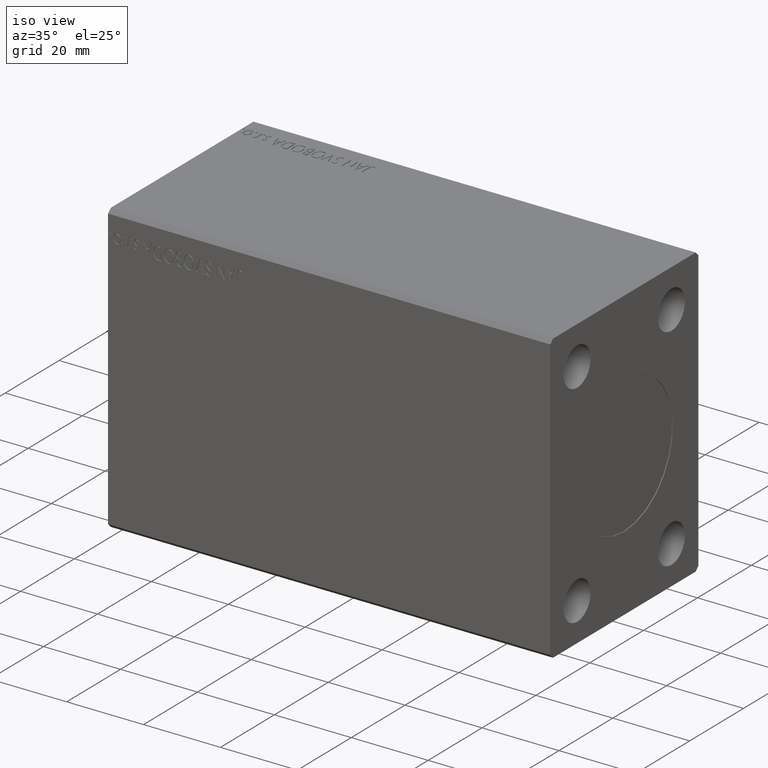
[diagram: clean part render]
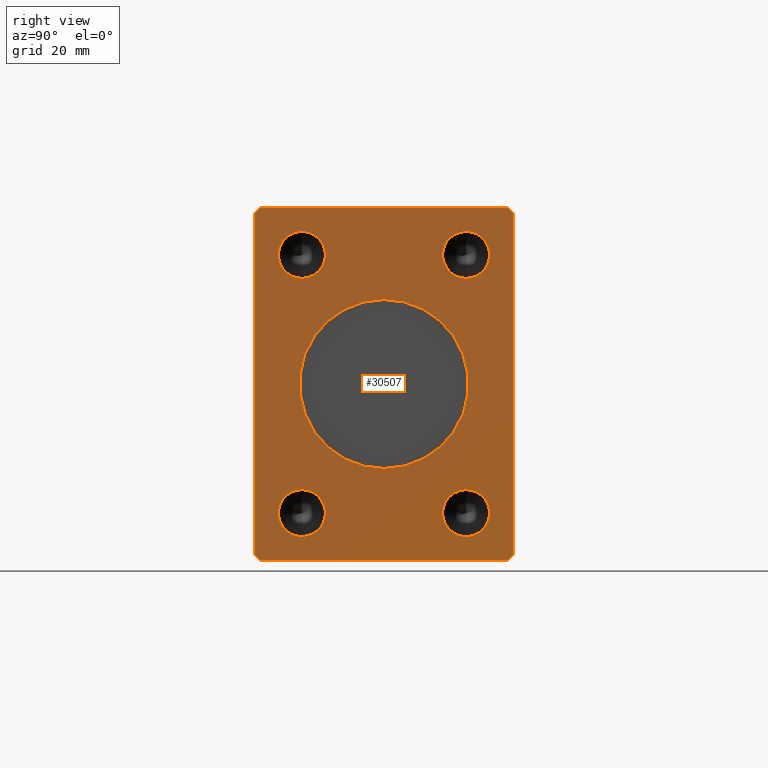
[diagram: tour spotlight — one face highlighted and labeled with its STEP entity id]
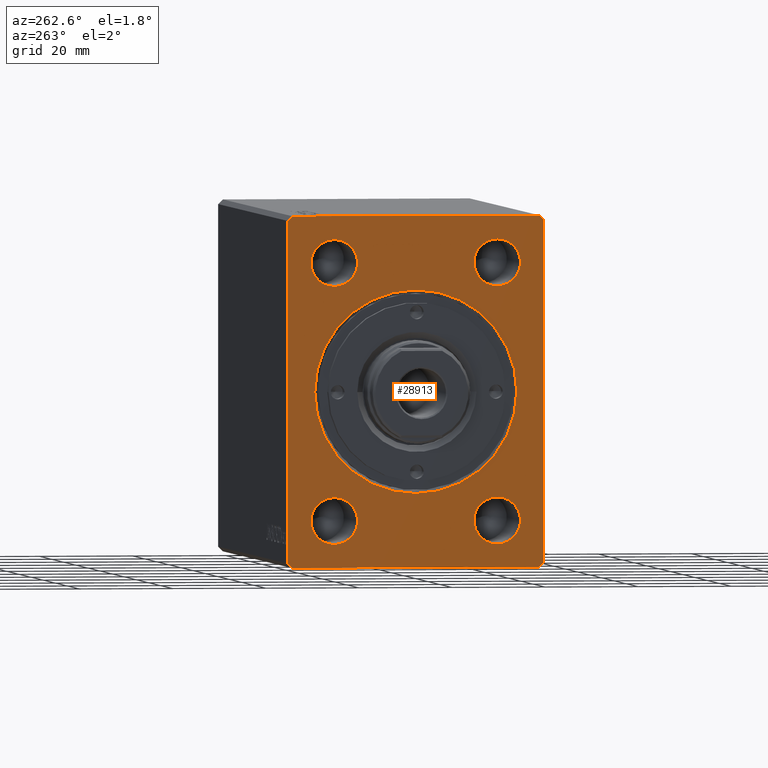
[diagram: tour spotlight — one face highlighted and labeled with its STEP entity id]
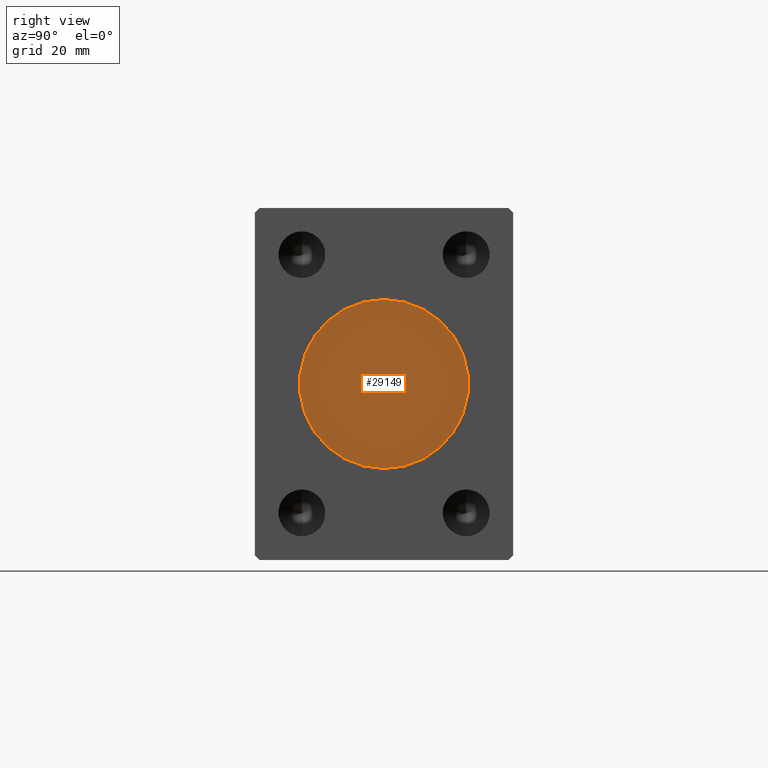
[diagram: tour spotlight — one face highlighted and labeled with its STEP entity id]
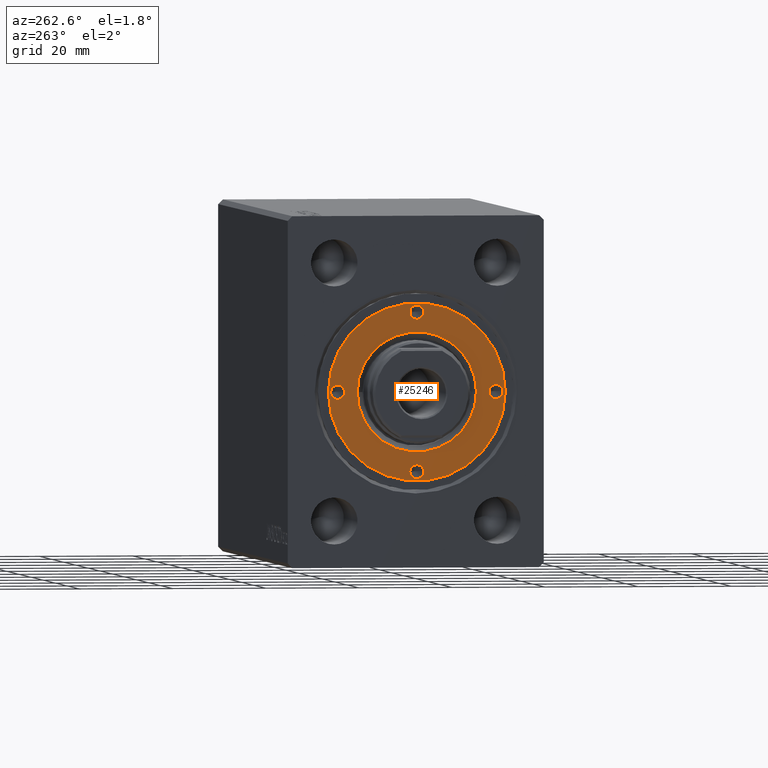
[diagram: tour spotlight — one face highlighted and labeled with its STEP entity id]
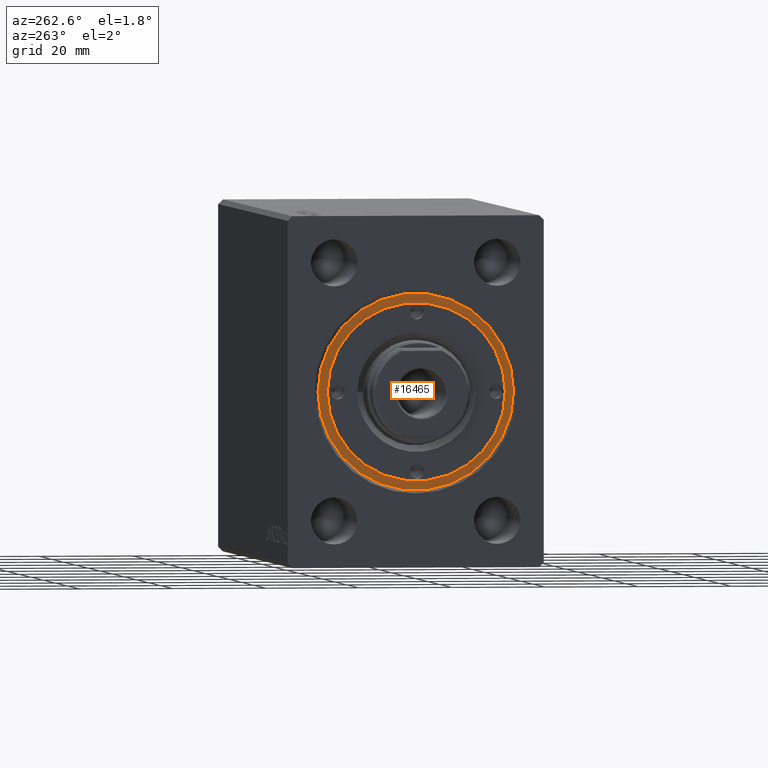
[diagram: tour spotlight — one face highlighted and labeled with its STEP entity id]
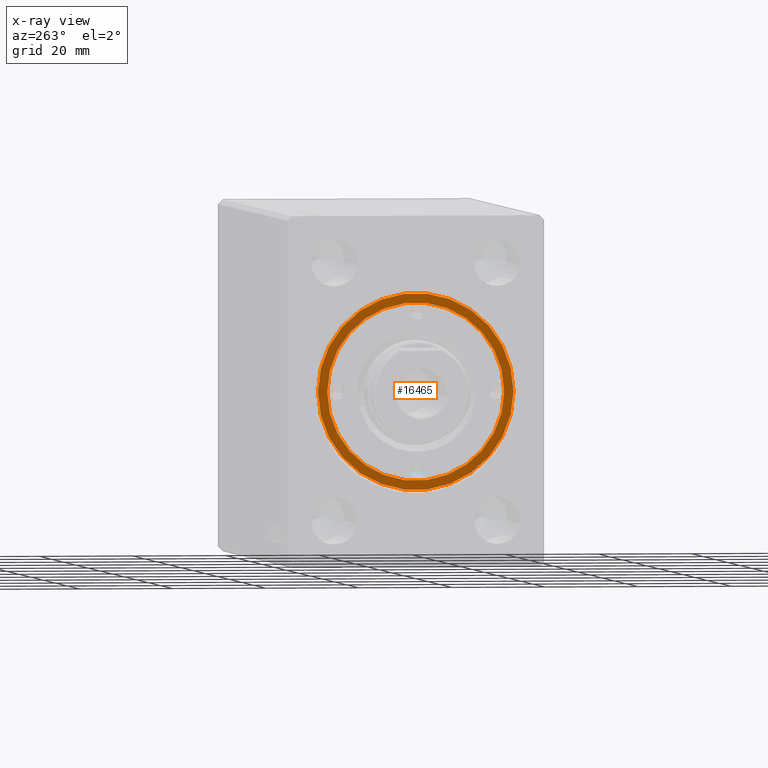
[diagram: x-ray of the same camera — body ghosted, this tour face saturated]
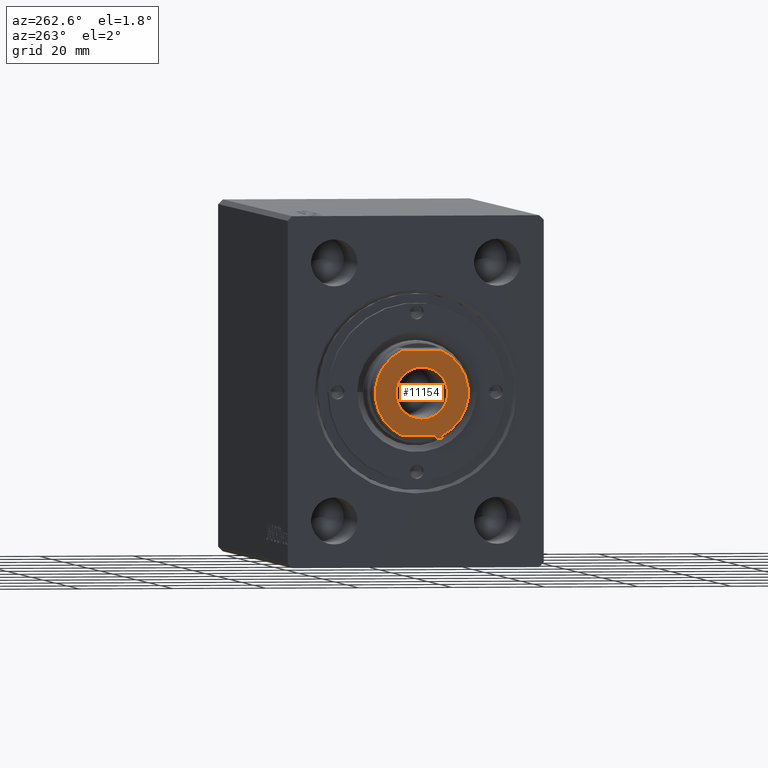
[diagram: tour spotlight — one face highlighted and labeled with its STEP entity id]
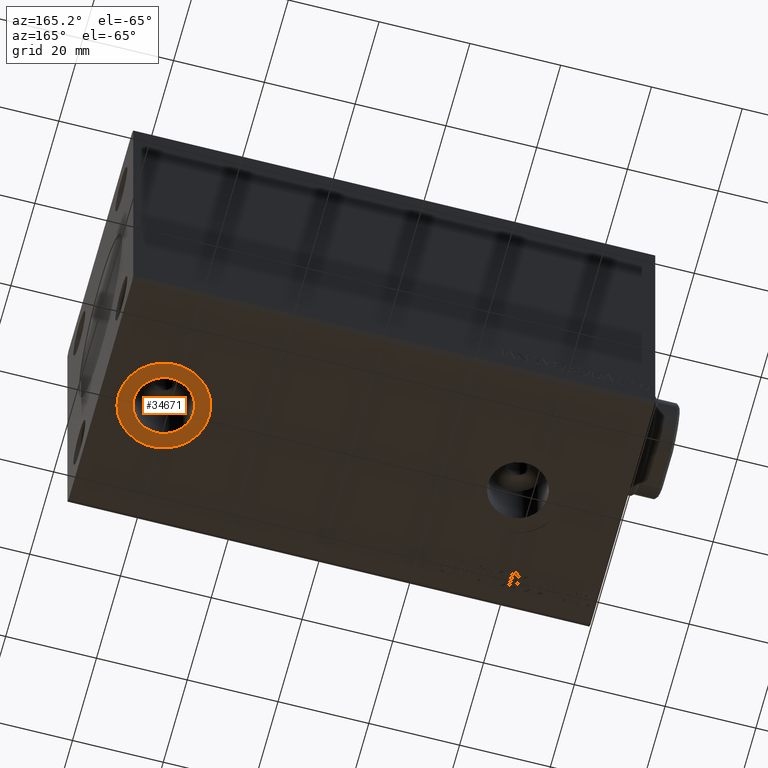
[diagram: tour spotlight — one face highlighted and labeled with its STEP entity id]
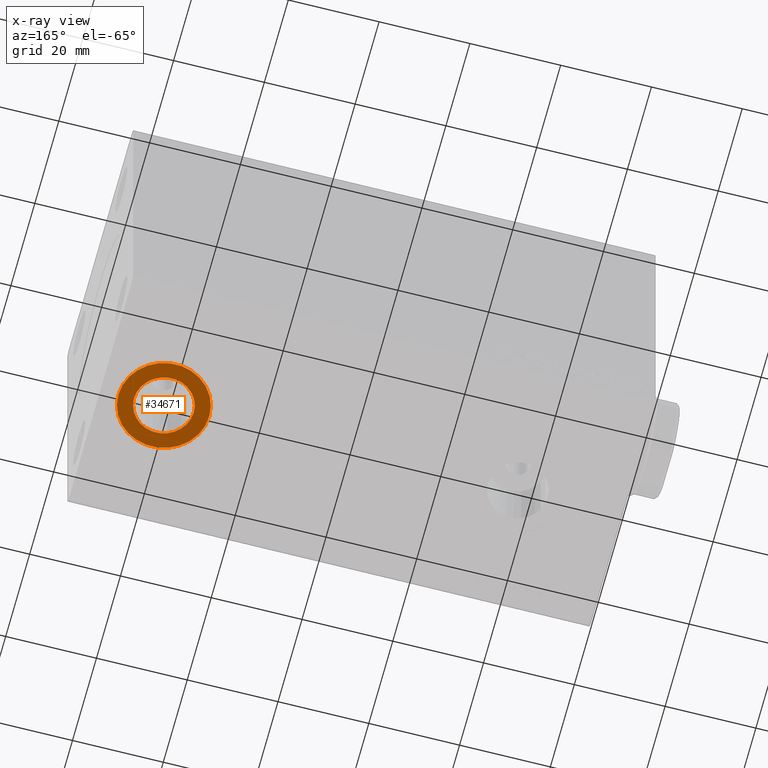
[diagram: x-ray of the same camera — body ghosted, this tour face saturated]
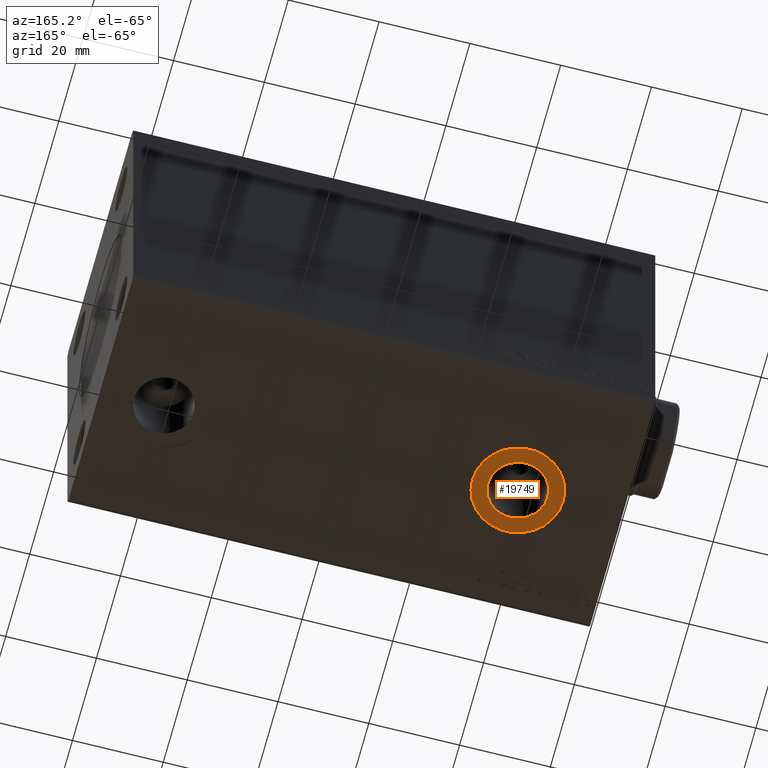
[diagram: tour spotlight — one face highlighted and labeled with its STEP entity id]
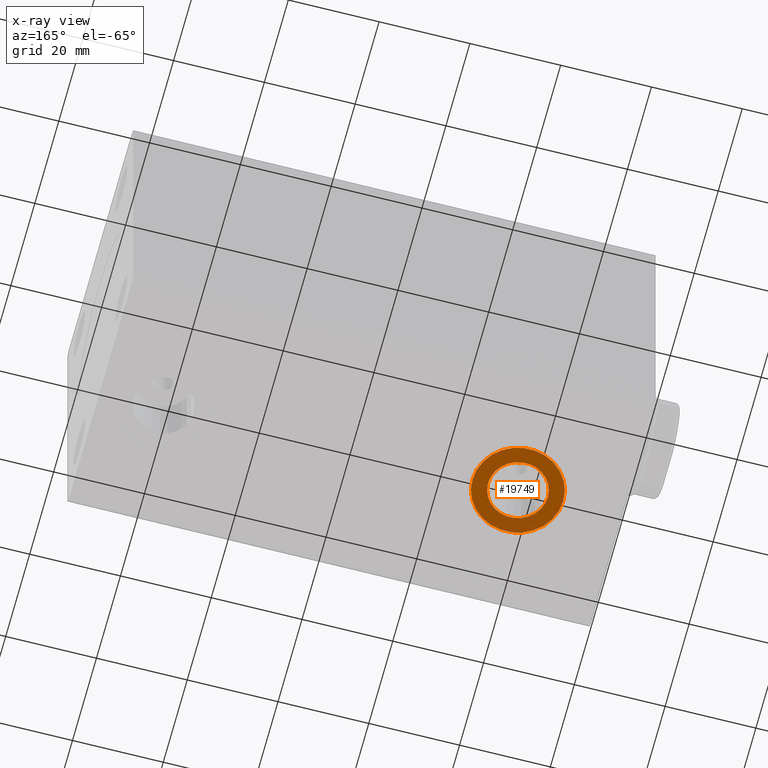
[diagram: x-ray of the same camera — body ghosted, this tour face saturated]
A machine part: a face-by-face anatomy tour. The part has 875 B-rep faces; the first image is the clean iso view, then the 8 largest visible faces are spotlighted one at a time (largest first), each with its STEP entity span.

Face 1 — right view, entity #30507. In plain terms, the highlighted planar face has unit normal (1, 0, 0).
Definition (entity closure, byte-faithful):
#178 = ORIENTED_EDGE ( 'NONE', *, *, #676, .T. ) ;
#628 = VERTEX_POINT ( 'NONE', #30998 ) ;
#676 = EDGE_CURVE ( 'NONE', #8443, #628, #30020, .T. ) ;
#766 = DIRECTION ( 'NONE',  ( 1.000000000000000000, -0.000000000000000000, -0.000000000000000000 ) ) ;
#2417 = CARTESIAN_POINT ( 'NONE',  ( 115.0000000000000000, 17.50000000000000000, -32.49999999999998579 ) ) ;
#2495 = VERTEX_POINT ( 'NONE', #21385 ) ;
#2610 = VERTEX_POINT ( 'NONE', #25607 ) ;
#3548 = CARTESIAN_POINT ( 'NONE',  ( 115.0000000000000000, -17.50000000000000000, 27.50000000000000355 ) ) ;
#3891 = CARTESIAN_POINT ( 'NONE',  ( 115.0000000000000000, 26.50000000000000711, -37.49999999999999289 ) ) ;
#3993 = DIRECTION ( 'NONE',  ( 0.000000000000000000, 0.000000000000000000, -1.000000000000000000 ) ) ;
#4043 = EDGE_CURVE ( 'NONE', #43049, #26716, #10431, .T. ) ;
#4570 = CARTESIAN_POINT ( 'NONE',  ( 115.0000000000000000, 17.50000000000000000, 27.50000000000000000 ) ) ;
#4688 = VERTEX_POINT ( 'NONE', #15572 ) ;
#4818 = CARTESIAN_POINT ( 'NONE',  ( 115.0000000000000000, 26.50000000000000711, -37.49999999999999289 ) ) ;
#4828 = DIRECTION ( 'NONE',  ( 1.000000000000000000, 0.000000000000000000, 0.000000000000000000 ) ) ;
#5097 = EDGE_CURVE ( 'NONE', #35039, #11024, #29706, .T. ) ;
#5129 = EDGE_LOOP ( 'NONE', ( #29312, #19926 ) ) ;
#5159 = AXIS2_PLACEMENT_3D ( 'NONE', #16016, #43650, #33602 ) ;
#5164 = CARTESIAN_POINT ( 'NONE',  ( 115.0000000000000000, -17.50000000000000000, 27.50000000000000355 ) ) ;
#5284 = ORIENTED_EDGE ( 'NONE', *, *, #36950, .T. ) ;
#5336 = FACE_BOUND ( 'NONE', #12798, .T. ) ;
#5487 = CARTESIAN_POINT ( 'NONE',  ( 115.0000000000000000, 0.000000000000000000, 0.000000000000000000 ) ) ;
#6356 = CARTESIAN_POINT ( 'NONE',  ( 115.0000000000000000, -27.50000000000000355, -36.49999999999998579 ) ) ;
#6739 = AXIS2_PLACEMENT_3D ( 'NONE', #33440, #16499, #30092 ) ;
#7848 = VECTOR ( 'NONE', #31565, 1000.000000000000114 ) ;
#7989 = EDGE_CURVE ( 'NONE', #37888, #2495, #37661, .T. ) ;
#8087 = DIRECTION ( 'NONE',  ( 1.000000000000000000, -0.000000000000000000, -0.000000000000000000 ) ) ;
#8152 = DIRECTION ( 'NONE',  ( 0.000000000000000000, 0.000000000000000000, -1.000000000000000000 ) ) ;
#8279 = AXIS2_PLACEMENT_3D ( 'NONE', #26735, #32761, #12480 ) ;
#8443 = VERTEX_POINT ( 'NONE', #26583 ) ;
#8678 = CIRCLE ( 'NONE', #39320, 18.00000000000000000 ) ;
#8898 = EDGE_CURVE ( 'NONE', #22506, #4688, #22102, .T. ) ;
#9143 = CARTESIAN_POINT ( 'NONE',  ( 115.0000000000000000, 2.204364238465235428E-15, 18.00000000000000000 ) ) ;
#9807 = EDGE_CURVE ( 'NONE', #15336, #21508, #38279, .T. ) ;
#9835 = LINE ( 'NONE', #37036, #18151 ) ;
#10431 = CIRCLE ( 'NONE', #33921, 4.999999999999993783 ) ;
#10694 = CARTESIAN_POINT ( 'NONE',  ( 115.0000000000000000, 26.50000000000000355, 37.50000000000000711 ) ) ;
#11024 = VERTEX_POINT ( 'NONE', #19751 ) ;
#12284 = DIRECTION ( 'NONE',  ( 0.000000000000000000, 0.000000000000000000, -1.000000000000000000 ) ) ;
#12292 = CARTESIAN_POINT ( 'NONE',  ( 115.0000000000000000, -17.50000000000000000, -32.49999999999999289 ) ) ;
#12338 = CARTESIAN_POINT ( 'NONE',  ( 115.0000000000000000, 17.50000000000000000, -22.49999999999999645 ) ) ;
#12480 = DIRECTION ( 'NONE',  ( 0.000000000000000000, 0.000000000000000000, -1.000000000000000000 ) ) ;
#12798 = EDGE_LOOP ( 'NONE', ( #42900, #20724 ) ) ;
#13325 = DIRECTION ( 'NONE',  ( 0.000000000000000000, 0.000000000000000000, -1.000000000000000000 ) ) ;
#13916 = CIRCLE ( 'NONE', #6739, 4.999999999999997335 ) ;
#13980 = CIRCLE ( 'NONE', #38901, 4.999999999999997335 ) ;
#14397 = VECTOR ( 'NONE', #42038, 1000.000000000000000 ) ;
#14424 = AXIS2_PLACEMENT_3D ( 'NONE', #28570, #39492, #12284 ) ;
#14470 = CARTESIAN_POINT ( 'NONE',  ( 115.0000000000000000, 17.50000000000000000, 32.50000000000000000 ) ) ;
#15336 = VERTEX_POINT ( 'NONE', #4818 ) ;
#15412 = ORIENTED_EDGE ( 'NONE', *, *, #29306, .F. ) ;
#15572 = CARTESIAN_POINT ( 'NONE',  ( 115.0000000000000000, -17.50000000000000000, 32.50000000000000000 ) ) ;
#16016 = CARTESIAN_POINT ( 'NONE',  ( 115.0000000000000000, -17.50000000000000000, -27.49999999999999645 ) ) ;
#16131 = EDGE_CURVE ( 'NONE', #20021, #25257, #27506, .T. ) ;
#16270 = DIRECTION ( 'NONE',  ( 0.000000000000000000, 0.000000000000000000, -1.000000000000000000 ) ) ;
#16480 = ORIENTED_EDGE ( 'NONE', *, *, #35241, .T. ) ;
#16499 = DIRECTION ( 'NONE',  ( 1.000000000000000000, -0.000000000000000000, -0.000000000000000000 ) ) ;
#16878 = AXIS2_PLACEMENT_3D ( 'NONE', #4570, #766, #8152 ) ;
#17041 = EDGE_CURVE ( 'NONE', #26716, #43049, #18446, .T. ) ;
#17521 = DIRECTION ( 'NONE',  ( 0.000000000000000000, 1.000000000000000000, 0.000000000000000000 ) ) ;
#17722 = CARTESIAN_POINT ( 'NONE',  ( 115.0000000000000000, 27.50000000000000711, -36.49999999999999289 ) ) ;
#18151 = VECTOR ( 'NONE', #33904, 1000.000000000000000 ) ;
#18446 = CIRCLE ( 'NONE', #43363, 4.999999999999993783 ) ;
#18630 = LINE ( 'NONE', #25319, #14397 ) ;
#18900 = DIRECTION ( 'NONE',  ( 0.000000000000000000, 0.000000000000000000, -1.000000000000000000 ) ) ;
#18974 = FACE_BOUND ( 'NONE', #40580, .T. ) ;
#19373 = DIRECTION ( 'NONE',  ( 0.000000000000000000, 4.752667057470705491E-17, -1.000000000000000000 ) ) ;
#19560 = DIRECTION ( 'NONE',  ( 0.000000000000000000, 0.7071067811865451302, -0.7071067811865500152 ) ) ;
#19584 = EDGE_LOOP ( 'NONE', ( #15412, #34597 ) ) ;
#19751 = CARTESIAN_POINT ( 'NONE',  ( 115.0000000000000000, 17.50000000000000000, 22.50000000000000355 ) ) ;
#19926 = ORIENTED_EDGE ( 'NONE', *, *, #17041, .F. ) ;
#20021 = VERTEX_POINT ( 'NONE', #12292 ) ;
#20073 = ORIENTED_EDGE ( 'NONE', *, *, #16131, .F. ) ;
#20205 = CARTESIAN_POINT ( 'NONE',  ( 115.0000000000000000, 27.50000000000000355, 36.50000000000000711 ) ) ;
#20261 = EDGE_LOOP ( 'NONE', ( #43837, #23983 ) ) ;
#20354 = ORIENTED_EDGE ( 'NONE', *, *, #24838, .T. ) ;
#20545 = LINE ( 'NONE', #24335, #33636 ) ;
#20724 = ORIENTED_EDGE ( 'NONE', *, *, #5097, .F. ) ;
#21058 = VERTEX_POINT ( 'NONE', #10694 ) ;
#21247 = ORIENTED_EDGE ( 'NONE', *, *, #9807, .T. ) ;
#21385 = CARTESIAN_POINT ( 'NONE',  ( 115.0000000000000000, 0.000000000000000000, -18.00000000000000000 ) ) ;
#21508 = VERTEX_POINT ( 'NONE', #17722 ) ;
#21532 = VECTOR ( 'NONE', #17521, 1000.000000000000000 ) ;
#21666 = FACE_BOUND ( 'NONE', #5129, .T. ) ;
#22102 = CIRCLE ( 'NONE', #36347, 4.999999999999997335 ) ;
#22103 = PLANE ( 'NONE',  #14424 ) ;
#22171 = VERTEX_POINT ( 'NONE', #37665 ) ;
#22506 = VERTEX_POINT ( 'NONE', #31302 ) ;
#23983 = ORIENTED_EDGE ( 'NONE', *, *, #40820, .F. ) ;
#24212 = CARTESIAN_POINT ( 'NONE',  ( 115.0000000000000000, -26.50000000000000355, -37.49999999999999289 ) ) ;
#24266 = EDGE_CURVE ( 'NONE', #628, #15336, #34678, .T. ) ;
#24335 = CARTESIAN_POINT ( 'NONE',  ( 115.0000000000000000, -26.50000000000000711, 37.50000000000000711 ) ) ;
#24838 = EDGE_CURVE ( 'NONE', #21058, #2610, #18630, .T. ) ;
#25257 = VERTEX_POINT ( 'NONE', #33912 ) ;
#25319 = CARTESIAN_POINT ( 'NONE',  ( 115.0000000000000000, 26.50000000000000355, 37.50000000000000711 ) ) ;
#25451 = FACE_OUTER_BOUND ( 'NONE', #35773, .T. ) ;
#25607 = CARTESIAN_POINT ( 'NONE',  ( 115.0000000000000000, -26.50000000000000711, 37.50000000000000711 ) ) ;
#26092 = EDGE_CURVE ( 'NONE', #2610, #22171, #20545, .T. ) ;
#26583 = CARTESIAN_POINT ( 'NONE',  ( 115.0000000000000000, -27.50000000000000355, -36.49999999999998579 ) ) ;
#26716 = VERTEX_POINT ( 'NONE', #12338 ) ;
#26735 = CARTESIAN_POINT ( 'NONE',  ( 115.0000000000000000, -17.50000000000000000, -27.49999999999999645 ) ) ;
#27235 = DIRECTION ( 'NONE',  ( 0.000000000000000000, -0.7071067811865474617, -0.7071067811865474617 ) ) ;
#27506 = CIRCLE ( 'NONE', #8279, 4.999999999999997335 ) ;
#27964 = CIRCLE ( 'NONE', #5159, 4.999999999999997335 ) ;
#28570 = CARTESIAN_POINT ( 'NONE',  ( 115.0000000000000000, 0.000000000000000000, 0.000000000000000000 ) ) ;
#28788 = FACE_BOUND ( 'NONE', #19584, .T. ) ;
#29285 = DIRECTION ( 'NONE',  ( 1.000000000000000000, -0.000000000000000000, -0.000000000000000000 ) ) ;
#29306 = EDGE_CURVE ( 'NONE', #2495, #37888, #8678, .T. ) ;
#29312 = ORIENTED_EDGE ( 'NONE', *, *, #4043, .F. ) ;
#29706 = CIRCLE ( 'NONE', #16878, 4.999999999999997335 ) ;
#30020 = LINE ( 'NONE', #6356, #31696 ) ;
#30092 = DIRECTION ( 'NONE',  ( 0.000000000000000000, 0.000000000000000000, -1.000000000000000000 ) ) ;
#30386 = ORIENTED_EDGE ( 'NONE', *, *, #30789, .F. ) ;
#30507 = ADVANCED_FACE ( 'NONE', ( #28788, #5336, #18974, #21666, #42614, #25451 ), #22103, .T. ) ;
#30789 = EDGE_CURVE ( 'NONE', #25257, #20021, #27964, .T. ) ;
#30919 = VECTOR ( 'NONE', #19373, 1000.000000000000000 ) ;
#30998 = CARTESIAN_POINT ( 'NONE',  ( 115.0000000000000000, -26.50000000000000355, -37.49999999999999289 ) ) ;
#31302 = CARTESIAN_POINT ( 'NONE',  ( 115.0000000000000000, -17.50000000000000000, 22.50000000000000711 ) ) ;
#31324 = DIRECTION ( 'NONE',  ( 0.000000000000000000, -0.7071067811865474617, 0.7071067811865474617 ) ) ;
#31565 = DIRECTION ( 'NONE',  ( 0.000000000000000000, 0.7071067811865474617, 0.7071067811865474617 ) ) ;
#31696 = VECTOR ( 'NONE', #19560, 1000.000000000000114 ) ;
#32396 = DIRECTION ( 'NONE',  ( 0.000000000000000000, 0.000000000000000000, -1.000000000000000000 ) ) ;
#32761 = DIRECTION ( 'NONE',  ( 1.000000000000000000, -0.000000000000000000, -0.000000000000000000 ) ) ;
#33236 = EDGE_CURVE ( 'NONE', #41744, #21058, #34444, .T. ) ;
#33440 = CARTESIAN_POINT ( 'NONE',  ( 115.0000000000000000, 17.50000000000000000, 27.50000000000000000 ) ) ;
#33602 = DIRECTION ( 'NONE',  ( 0.000000000000000000, 0.000000000000000000, -1.000000000000000000 ) ) ;
#33636 = VECTOR ( 'NONE', #27235, 1000.000000000000114 ) ;
#33640 = DIRECTION ( 'NONE',  ( 1.000000000000000000, 0.000000000000000000, 0.000000000000000000 ) ) ;
#33653 = ORIENTED_EDGE ( 'NONE', *, *, #24266, .T. ) ;
#33904 = DIRECTION ( 'NONE',  ( 0.000000000000000000, -4.752667057470704875E-17, 1.000000000000000000 ) ) ;
#33912 = CARTESIAN_POINT ( 'NONE',  ( 115.0000000000000000, -17.50000000000000000, -22.50000000000000000 ) ) ;
#33921 = AXIS2_PLACEMENT_3D ( 'NONE', #37155, #43855, #13325 ) ;
#34444 = LINE ( 'NONE', #20205, #38738 ) ;
#34597 = ORIENTED_EDGE ( 'NONE', *, *, #7989, .F. ) ;
#34678 = LINE ( 'NONE', #24212, #21532 ) ;
#35039 = VERTEX_POINT ( 'NONE', #14470 ) ;
#35241 = EDGE_CURVE ( 'NONE', #22171, #8443, #43006, .T. ) ;
#35773 = EDGE_LOOP ( 'NONE', ( #42110, #20354, #36929, #16480, #178, #33653, #21247, #5284 ) ) ;
#35970 = CARTESIAN_POINT ( 'NONE',  ( 115.0000000000000000, 17.50000000000000000, -27.49999999999999289 ) ) ;
#36347 = AXIS2_PLACEMENT_3D ( 'NONE', #5164, #8087, #32396 ) ;
#36752 = CARTESIAN_POINT ( 'NONE',  ( 115.0000000000000000, -27.50000000000000711, 36.50000000000000711 ) ) ;
#36929 = ORIENTED_EDGE ( 'NONE', *, *, #26092, .T. ) ;
#36950 = EDGE_CURVE ( 'NONE', #21508, #41744, #9835, .T. ) ;
#37036 = CARTESIAN_POINT ( 'NONE',  ( 115.0000000000000000, 27.50000000000000711, -36.49999999999999289 ) ) ;
#37155 = CARTESIAN_POINT ( 'NONE',  ( 115.0000000000000000, 17.50000000000000000, -27.49999999999999289 ) ) ;
#37661 = CIRCLE ( 'NONE', #39850, 18.00000000000000000 ) ;
#37665 = CARTESIAN_POINT ( 'NONE',  ( 115.0000000000000000, -27.50000000000000711, 36.50000000000000711 ) ) ;
#37888 = VERTEX_POINT ( 'NONE', #9143 ) ;
#38062 = EDGE_CURVE ( 'NONE', #11024, #35039, #13916, .T. ) ;
#38279 = LINE ( 'NONE', #3891, #7848 ) ;
#38738 = VECTOR ( 'NONE', #31324, 1000.000000000000114 ) ;
#38816 = CARTESIAN_POINT ( 'NONE',  ( 115.0000000000000000, 27.50000000000000355, 36.50000000000000711 ) ) ;
#38901 = AXIS2_PLACEMENT_3D ( 'NONE', #3548, #40831, #3993 ) ;
#39320 = AXIS2_PLACEMENT_3D ( 'NONE', #43025, #33640, #16270 ) ;
#39492 = DIRECTION ( 'NONE',  ( 1.000000000000000000, 0.000000000000000000, 0.000000000000000000 ) ) ;
#39850 = AXIS2_PLACEMENT_3D ( 'NONE', #5487, #4828, #18900 ) ;
#40580 = EDGE_LOOP ( 'NONE', ( #20073, #30386 ) ) ;
#40820 = EDGE_CURVE ( 'NONE', #4688, #22506, #13980, .T. ) ;
#40831 = DIRECTION ( 'NONE',  ( 1.000000000000000000, -0.000000000000000000, -0.000000000000000000 ) ) ;
#41744 = VERTEX_POINT ( 'NONE', #38816 ) ;
#42038 = DIRECTION ( 'NONE',  ( 0.000000000000000000, -1.000000000000000000, 0.000000000000000000 ) ) ;
#42110 = ORIENTED_EDGE ( 'NONE', *, *, #33236, .T. ) ;
#42614 = FACE_BOUND ( 'NONE', #20261, .T. ) ;
#42883 = DIRECTION ( 'NONE',  ( 0.000000000000000000, 0.000000000000000000, -1.000000000000000000 ) ) ;
#42900 = ORIENTED_EDGE ( 'NONE', *, *, #38062, .F. ) ;
#43006 = LINE ( 'NONE', #36752, #30919 ) ;
#43025 = CARTESIAN_POINT ( 'NONE',  ( 115.0000000000000000, 0.000000000000000000, 0.000000000000000000 ) ) ;
#43049 = VERTEX_POINT ( 'NONE', #2417 ) ;
#43363 = AXIS2_PLACEMENT_3D ( 'NONE', #35970, #29285, #42883 ) ;
#43650 = DIRECTION ( 'NONE',  ( 1.000000000000000000, -0.000000000000000000, -0.000000000000000000 ) ) ;
#43837 = ORIENTED_EDGE ( 'NONE', *, *, #8898, .F. ) ;
#43855 = DIRECTION ( 'NONE',  ( 1.000000000000000000, -0.000000000000000000, -0.000000000000000000 ) ) ;

Face 2 — auxiliary view, entity #28913. In plain terms, the highlighted planar face has unit normal (1, 0, 0).
Definition (entity closure, byte-faithful):
#348 = CARTESIAN_POINT ( 'NONE',  ( 0.000000000000000000, 26.50000000000000355, 37.50000000000000711 ) ) ;
#479 = FACE_BOUND ( 'NONE', #897, .T. ) ;
#695 = PLANE ( 'NONE',  #7969 ) ;
#742 = ORIENTED_EDGE ( 'NONE', *, *, #31840, .F. ) ;
#757 = AXIS2_PLACEMENT_3D ( 'NONE', #26885, #33565, #12854 ) ;
#897 = EDGE_LOOP ( 'NONE', ( #30663, #18614 ) ) ;
#1420 = CARTESIAN_POINT ( 'NONE',  ( 1.224646799147350495E-16, 17.50000000000000000, -27.49999999999999289 ) ) ;
#1429 = VECTOR ( 'NONE', #21332, 1000.000000000000000 ) ;
#1474 = CARTESIAN_POINT ( 'NONE',  ( 1.224646799147350495E-16, -17.50000000000000000, 27.50000000000000355 ) ) ;
#1517 = CARTESIAN_POINT ( 'NONE',  ( 1.224646799147350495E-16, -17.50000000000000000, 27.50000000000000355 ) ) ;
#1560 = ORIENTED_EDGE ( 'NONE', *, *, #31639, .F. ) ;
#1789 = ORIENTED_EDGE ( 'NONE', *, *, #21761, .F. ) ;
#1845 = ORIENTED_EDGE ( 'NONE', *, *, #21215, .F. ) ;
#2060 = ORIENTED_EDGE ( 'NONE', *, *, #9765, .F. ) ;
#2285 = DIRECTION ( 'NONE',  ( 0.000000000000000000, 0.000000000000000000, 1.000000000000000000 ) ) ;
#2351 = CARTESIAN_POINT ( 'NONE',  ( 1.224646799147350495E-16, -17.50000000000000000, -22.50000000000000000 ) ) ;
#2934 = CARTESIAN_POINT ( 'NONE',  ( 0.000000000000000000, 26.50000000000000711, -37.49999999999999289 ) ) ;
#2993 = EDGE_CURVE ( 'NONE', #22058, #32468, #26651, .T. ) ;
#3737 = CIRCLE ( 'NONE', #35803, 4.999999999999997335 ) ;
#3818 = FACE_BOUND ( 'NONE', #18498, .T. ) ;
#4229 = ORIENTED_EDGE ( 'NONE', *, *, #25543, .F. ) ;
#4379 = EDGE_CURVE ( 'NONE', #28225, #29889, #24785, .T. ) ;
#4450 = CARTESIAN_POINT ( 'NONE',  ( 0.000000000000000000, 27.50000000000000355, 36.50000000000000711 ) ) ;
#4686 = CARTESIAN_POINT ( 'NONE',  ( 1.224646799147350495E-16, -17.50000000000000000, 32.50000000000000000 ) ) ;
#6534 = DIRECTION ( 'NONE',  ( 0.000000000000000000, 0.7071067811865451302, -0.7071067811865500152 ) ) ;
#6721 = CARTESIAN_POINT ( 'NONE',  ( 1.224646799147350495E-16, 17.50000000000000000, 32.50000000000000000 ) ) ;
#6990 = VERTEX_POINT ( 'NONE', #16975 ) ;
#7556 = VERTEX_POINT ( 'NONE', #11428 ) ;
#7761 = CIRCLE ( 'NONE', #32702, 4.999999999999997335 ) ;
#7926 = CARTESIAN_POINT ( 'NONE',  ( 0.000000000000000000, 27.50000000000000711, -36.49999999999999289 ) ) ;
#7969 = AXIS2_PLACEMENT_3D ( 'NONE', #41766, #14349, #27934 ) ;
#8017 = ORIENTED_EDGE ( 'NONE', *, *, #37046, .F. ) ;
#8540 = EDGE_CURVE ( 'NONE', #39447, #31265, #7761, .T. ) ;
#8588 = CIRCLE ( 'NONE', #757, 4.999999999999997335 ) ;
#8853 = DIRECTION ( 'NONE',  ( -1.000000000000000000, -0.000000000000000000, -0.000000000000000000 ) ) ;
#9349 = DIRECTION ( 'NONE',  ( 0.000000000000000000, 1.000000000000000000, 0.000000000000000000 ) ) ;
#9603 = AXIS2_PLACEMENT_3D ( 'NONE', #19720, #25972, #2285 ) ;
#9765 = EDGE_CURVE ( 'NONE', #6990, #28225, #24227, .T. ) ;
#9972 = CARTESIAN_POINT ( 'NONE',  ( 1.224646799147350495E-16, -17.50000000000000000, -27.49999999999999645 ) ) ;
#10397 = VECTOR ( 'NONE', #6534, 1000.000000000000114 ) ;
#10494 = DIRECTION ( 'NONE',  ( -1.000000000000000000, -0.000000000000000000, -0.000000000000000000 ) ) ;
#10666 = DIRECTION ( 'NONE',  ( 1.000000000000000000, 0.000000000000000000, 0.000000000000000000 ) ) ;
#10973 = EDGE_LOOP ( 'NONE', ( #17381, #33303 ) ) ;
#11000 = CIRCLE ( 'NONE', #9603, 5.000000000000000888 ) ;
#11351 = CARTESIAN_POINT ( 'NONE',  ( 1.224646799147350495E-16, -17.50000000000000000, -32.49999999999999289 ) ) ;
#11366 = DIRECTION ( 'NONE',  ( -1.000000000000000000, -0.000000000000000000, -0.000000000000000000 ) ) ;
#11428 = CARTESIAN_POINT ( 'NONE',  ( 1.224646799147350495E-16, 17.50000000000000000, 22.50000000000000355 ) ) ;
#12590 = VECTOR ( 'NONE', #27289, 1000.000000000000114 ) ;
#12854 = DIRECTION ( 'NONE',  ( 0.000000000000000000, 0.000000000000000000, 1.000000000000000000 ) ) ;
#12932 = LINE ( 'NONE', #22976, #35198 ) ;
#13056 = VECTOR ( 'NONE', #25126, 1000.000000000000000 ) ;
#13362 = VERTEX_POINT ( 'NONE', #2351 ) ;
#13660 = CARTESIAN_POINT ( 'NONE',  ( 0.000000000000000000, 0.000000000000000000, 0.000000000000000000 ) ) ;
#13835 = CARTESIAN_POINT ( 'NONE',  ( 0.000000000000000000, -27.50000000000000711, 36.50000000000000711 ) ) ;
#13950 = EDGE_CURVE ( 'NONE', #27647, #42746, #15290, .T. ) ;
#14081 = DIRECTION ( 'NONE',  ( 0.000000000000000000, 0.000000000000000000, 1.000000000000000000 ) ) ;
#14132 = FACE_BOUND ( 'NONE', #38123, .T. ) ;
#14349 = DIRECTION ( 'NONE',  ( 1.000000000000000000, 0.000000000000000000, 0.000000000000000000 ) ) ;
#14705 = CARTESIAN_POINT ( 'NONE',  ( 0.000000000000000000, 26.50000000000000711, -37.49999999999999289 ) ) ;
#14745 = CARTESIAN_POINT ( 'NONE',  ( 0.000000000000000000, 26.50000000000000355, 37.50000000000000711 ) ) ;
#14828 = VERTEX_POINT ( 'NONE', #18562 ) ;
#15067 = DIRECTION ( 'NONE',  ( -1.000000000000000000, -0.000000000000000000, -0.000000000000000000 ) ) ;
#15290 = CIRCLE ( 'NONE', #40206, 21.70000000000003837 ) ;
#15916 = EDGE_CURVE ( 'NONE', #31265, #39447, #43907, .T. ) ;
#15928 = LINE ( 'NONE', #2934, #29292 ) ;
#16432 = DIRECTION ( 'NONE',  ( -1.000000000000000000, -0.000000000000000000, -0.000000000000000000 ) ) ;
#16564 = DIRECTION ( 'NONE',  ( 0.000000000000000000, 0.000000000000000000, -1.000000000000000000 ) ) ;
#16658 = CARTESIAN_POINT ( 'NONE',  ( 1.224646799147350495E-16, -17.50000000000000000, -27.49999999999999645 ) ) ;
#16702 = ORIENTED_EDGE ( 'NONE', *, *, #13950, .T. ) ;
#16975 = CARTESIAN_POINT ( 'NONE',  ( 0.000000000000000000, 27.50000000000000711, -36.49999999999999289 ) ) ;
#17362 = CARTESIAN_POINT ( 'NONE',  ( 0.000000000000000000, 0.000000000000000000, 0.000000000000000000 ) ) ;
#17381 = ORIENTED_EDGE ( 'NONE', *, *, #15916, .F. ) ;
#18498 = EDGE_LOOP ( 'NONE', ( #33175, #8017 ) ) ;
#18562 = CARTESIAN_POINT ( 'NONE',  ( 0.000000000000000000, -26.50000000000000711, 37.50000000000000711 ) ) ;
#18614 = ORIENTED_EDGE ( 'NONE', *, *, #29411, .F. ) ;
#18687 = CIRCLE ( 'NONE', #19422, 4.999999999999997335 ) ;
#18839 = CARTESIAN_POINT ( 'NONE',  ( 0.000000000000000000, 2.657483554149761471E-15, -21.70000000000003837 ) ) ;
#19422 = AXIS2_PLACEMENT_3D ( 'NONE', #1420, #15067, #30945 ) ;
#19720 = CARTESIAN_POINT ( 'NONE',  ( 1.224646799147350495E-16, 17.50000000000000000, 27.50000000000000000 ) ) ;
#20120 = AXIS2_PLACEMENT_3D ( 'NONE', #16658, #16432, #20436 ) ;
#20334 = CARTESIAN_POINT ( 'NONE',  ( 0.000000000000000000, 0.000000000000000000, 21.70000000000003837 ) ) ;
#20409 = AXIS2_PLACEMENT_3D ( 'NONE', #1517, #11366, #35663 ) ;
#20436 = DIRECTION ( 'NONE',  ( 0.000000000000000000, 0.000000000000000000, 1.000000000000000000 ) ) ;
#20718 = VECTOR ( 'NONE', #41195, 1000.000000000000000 ) ;
#21013 = VERTEX_POINT ( 'NONE', #11351 ) ;
#21215 = EDGE_CURVE ( 'NONE', #29889, #14828, #34716, .T. ) ;
#21332 = DIRECTION ( 'NONE',  ( 0.000000000000000000, -4.752667057470704875E-17, 1.000000000000000000 ) ) ;
#21487 = EDGE_CURVE ( 'NONE', #31590, #44061, #8588, .T. ) ;
#21565 = LINE ( 'NONE', #35157, #13056 ) ;
#21761 = EDGE_CURVE ( 'NONE', #31542, #6990, #15928, .T. ) ;
#21888 = VERTEX_POINT ( 'NONE', #6721 ) ;
#22058 = VERTEX_POINT ( 'NONE', #41966 ) ;
#22286 = VERTEX_POINT ( 'NONE', #13835 ) ;
#22976 = CARTESIAN_POINT ( 'NONE',  ( 0.000000000000000000, -26.50000000000000355, -37.49999999999999289 ) ) ;
#24227 = LINE ( 'NONE', #7926, #1429 ) ;
#24278 = DIRECTION ( 'NONE',  ( 0.000000000000000000, 0.000000000000000000, -1.000000000000000000 ) ) ;
#24781 = DIRECTION ( 'NONE',  ( 0.000000000000000000, -0.7071067811865474617, -0.7071067811865474617 ) ) ;
#24785 = LINE ( 'NONE', #4450, #12590 ) ;
#24950 = ORIENTED_EDGE ( 'NONE', *, *, #4379, .F. ) ;
#25126 = DIRECTION ( 'NONE',  ( 0.000000000000000000, 4.752667057470705491E-17, -1.000000000000000000 ) ) ;
#25543 = EDGE_CURVE ( 'NONE', #21013, #13362, #26519, .T. ) ;
#25972 = DIRECTION ( 'NONE',  ( -1.000000000000000000, -0.000000000000000000, -0.000000000000000000 ) ) ;
#26519 = CIRCLE ( 'NONE', #20120, 4.999999999999997335 ) ;
#26651 = LINE ( 'NONE', #30635, #10397 ) ;
#26885 = CARTESIAN_POINT ( 'NONE',  ( 1.224646799147350495E-16, 17.50000000000000000, -27.49999999999999289 ) ) ;
#27269 = CIRCLE ( 'NONE', #40111, 21.70000000000003837 ) ;
#27289 = DIRECTION ( 'NONE',  ( 0.000000000000000000, -0.7071067811865474617, 0.7071067811865474617 ) ) ;
#27307 = CARTESIAN_POINT ( 'NONE',  ( 1.224646799147350495E-16, -17.50000000000000000, 22.50000000000000711 ) ) ;
#27647 = VERTEX_POINT ( 'NONE', #18839 ) ;
#27934 = DIRECTION ( 'NONE',  ( 0.000000000000000000, 0.000000000000000000, -1.000000000000000000 ) ) ;
#28061 = CARTESIAN_POINT ( 'NONE',  ( 1.224646799147350495E-16, 17.50000000000000000, -32.49999999999998579 ) ) ;
#28164 = FACE_BOUND ( 'NONE', #10973, .T. ) ;
#28225 = VERTEX_POINT ( 'NONE', #33147 ) ;
#28302 = CARTESIAN_POINT ( 'NONE',  ( 1.224646799147350495E-16, 17.50000000000000000, -22.49999999999999645 ) ) ;
#28913 = ADVANCED_FACE ( 'NONE', ( #3818, #31057, #479, #28164, #14132, #31271 ), #695, .F. ) ;
#29292 = VECTOR ( 'NONE', #30389, 1000.000000000000114 ) ;
#29411 = EDGE_CURVE ( 'NONE', #44061, #31590, #18687, .T. ) ;
#29624 = ORIENTED_EDGE ( 'NONE', *, *, #29873, .F. ) ;
#29873 = EDGE_CURVE ( 'NONE', #14828, #22286, #30788, .T. ) ;
#29889 = VERTEX_POINT ( 'NONE', #14745 ) ;
#30389 = DIRECTION ( 'NONE',  ( 0.000000000000000000, 0.7071067811865474617, 0.7071067811865474617 ) ) ;
#30635 = CARTESIAN_POINT ( 'NONE',  ( 0.000000000000000000, -27.50000000000000355, -36.49999999999998579 ) ) ;
#30663 = ORIENTED_EDGE ( 'NONE', *, *, #21487, .F. ) ;
#30788 = LINE ( 'NONE', #37708, #38648 ) ;
#30945 = DIRECTION ( 'NONE',  ( 0.000000000000000000, 0.000000000000000000, 1.000000000000000000 ) ) ;
#31057 = FACE_BOUND ( 'NONE', #38547, .T. ) ;
#31152 = EDGE_CURVE ( 'NONE', #42746, #27647, #27269, .T. ) ;
#31265 = VERTEX_POINT ( 'NONE', #4686 ) ;
#31271 = FACE_OUTER_BOUND ( 'NONE', #35644, .T. ) ;
#31542 = VERTEX_POINT ( 'NONE', #14705 ) ;
#31590 = VERTEX_POINT ( 'NONE', #28302 ) ;
#31639 = EDGE_CURVE ( 'NONE', #13362, #21013, #3737, .T. ) ;
#31840 = EDGE_CURVE ( 'NONE', #22286, #22058, #21565, .T. ) ;
#32468 = VERTEX_POINT ( 'NONE', #38249 ) ;
#32702 = AXIS2_PLACEMENT_3D ( 'NONE', #1474, #8853, #43198 ) ;
#33147 = CARTESIAN_POINT ( 'NONE',  ( 0.000000000000000000, 27.50000000000000355, 36.50000000000000711 ) ) ;
#33175 = ORIENTED_EDGE ( 'NONE', *, *, #36596, .F. ) ;
#33303 = ORIENTED_EDGE ( 'NONE', *, *, #8540, .F. ) ;
#33565 = DIRECTION ( 'NONE',  ( -1.000000000000000000, -0.000000000000000000, -0.000000000000000000 ) ) ;
#33664 = ORIENTED_EDGE ( 'NONE', *, *, #34926, .F. ) ;
#33790 = CIRCLE ( 'NONE', #38806, 5.000000000000000888 ) ;
#34716 = LINE ( 'NONE', #348, #20718 ) ;
#34926 = EDGE_CURVE ( 'NONE', #32468, #31542, #12932, .T. ) ;
#35157 = CARTESIAN_POINT ( 'NONE',  ( 0.000000000000000000, -27.50000000000000711, 36.50000000000000711 ) ) ;
#35198 = VECTOR ( 'NONE', #9349, 1000.000000000000000 ) ;
#35644 = EDGE_LOOP ( 'NONE', ( #24950, #2060, #1789, #33664, #36966, #742, #29624, #1845 ) ) ;
#35663 = DIRECTION ( 'NONE',  ( 0.000000000000000000, 0.000000000000000000, 1.000000000000000000 ) ) ;
#35803 = AXIS2_PLACEMENT_3D ( 'NONE', #9972, #40316, #36743 ) ;
#36596 = EDGE_CURVE ( 'NONE', #21888, #7556, #11000, .T. ) ;
#36743 = DIRECTION ( 'NONE',  ( 0.000000000000000000, 0.000000000000000000, 1.000000000000000000 ) ) ;
#36966 = ORIENTED_EDGE ( 'NONE', *, *, #2993, .F. ) ;
#37046 = EDGE_CURVE ( 'NONE', #7556, #21888, #33790, .T. ) ;
#37072 = ORIENTED_EDGE ( 'NONE', *, *, #31152, .T. ) ;
#37696 = CARTESIAN_POINT ( 'NONE',  ( 1.224646799147350495E-16, 17.50000000000000000, 27.50000000000000000 ) ) ;
#37708 = CARTESIAN_POINT ( 'NONE',  ( 0.000000000000000000, -26.50000000000000711, 37.50000000000000711 ) ) ;
#38123 = EDGE_LOOP ( 'NONE', ( #37072, #16702 ) ) ;
#38249 = CARTESIAN_POINT ( 'NONE',  ( 0.000000000000000000, -26.50000000000000355, -37.49999999999999289 ) ) ;
#38547 = EDGE_LOOP ( 'NONE', ( #1560, #4229 ) ) ;
#38648 = VECTOR ( 'NONE', #24781, 1000.000000000000114 ) ;
#38806 = AXIS2_PLACEMENT_3D ( 'NONE', #37696, #10494, #14081 ) ;
#39447 = VERTEX_POINT ( 'NONE', #27307 ) ;
#40111 = AXIS2_PLACEMENT_3D ( 'NONE', #13660, #43326, #16564 ) ;
#40206 = AXIS2_PLACEMENT_3D ( 'NONE', #17362, #10666, #24278 ) ;
#40316 = DIRECTION ( 'NONE',  ( -1.000000000000000000, -0.000000000000000000, -0.000000000000000000 ) ) ;
#41195 = DIRECTION ( 'NONE',  ( 0.000000000000000000, -1.000000000000000000, 0.000000000000000000 ) ) ;
#41766 = CARTESIAN_POINT ( 'NONE',  ( 0.000000000000000000, 0.000000000000000000, 0.000000000000000000 ) ) ;
#41966 = CARTESIAN_POINT ( 'NONE',  ( 0.000000000000000000, -27.50000000000000355, -36.49999999999998579 ) ) ;
#42746 = VERTEX_POINT ( 'NONE', #20334 ) ;
#43198 = DIRECTION ( 'NONE',  ( 0.000000000000000000, 0.000000000000000000, 1.000000000000000000 ) ) ;
#43326 = DIRECTION ( 'NONE',  ( 1.000000000000000000, 0.000000000000000000, 0.000000000000000000 ) ) ;
#43907 = CIRCLE ( 'NONE', #20409, 4.999999999999997335 ) ;
#44061 = VERTEX_POINT ( 'NONE', #28061 ) ;

Face 3 — right view, entity #29149. In plain terms, the highlighted planar face has unit normal (1, 0, 0).
Definition (entity closure, byte-faithful):
#112 = CARTESIAN_POINT ( 'NONE',  ( 114.7999999999999972, 0.000000000000000000, 0.000000000000000000 ) ) ;
#864 = PLANE ( 'NONE',  #23746 ) ;
#2475 = AXIS2_PLACEMENT_3D ( 'NONE', #11116, #24734, #27628 ) ;
#9493 = CARTESIAN_POINT ( 'NONE',  ( 114.7999999999999972, 2.204364238465235428E-15, 18.00000000000000000 ) ) ;
#11116 = CARTESIAN_POINT ( 'NONE',  ( 114.7999999999999972, 0.000000000000000000, 0.000000000000000000 ) ) ;
#12863 = ORIENTED_EDGE ( 'NONE', *, *, #30862, .T. ) ;
#16042 = CIRCLE ( 'NONE', #2475, 18.00000000000000000 ) ;
#17416 = CARTESIAN_POINT ( 'NONE',  ( 114.7999999999999972, 0.000000000000000000, 0.000000000000000000 ) ) ;
#17838 = ORIENTED_EDGE ( 'NONE', *, *, #38163, .T. ) ;
#20231 = DIRECTION ( 'NONE',  ( 1.000000000000000000, 0.000000000000000000, 0.000000000000000000 ) ) ;
#21584 = CIRCLE ( 'NONE', #41503, 18.00000000000000000 ) ;
#23479 = VERTEX_POINT ( 'NONE', #9493 ) ;
#23746 = AXIS2_PLACEMENT_3D ( 'NONE', #17416, #37702, #38373 ) ;
#24734 = DIRECTION ( 'NONE',  ( 1.000000000000000000, 0.000000000000000000, 0.000000000000000000 ) ) ;
#27628 = DIRECTION ( 'NONE',  ( 0.000000000000000000, 0.000000000000000000, -1.000000000000000000 ) ) ;
#27797 = DIRECTION ( 'NONE',  ( 0.000000000000000000, 0.000000000000000000, -1.000000000000000000 ) ) ;
#29149 = ADVANCED_FACE ( 'NONE', ( #41713 ), #864, .T. ) ;
#30862 = EDGE_CURVE ( 'NONE', #39346, #23479, #21584, .T. ) ;
#32469 = CARTESIAN_POINT ( 'NONE',  ( 114.7999999999999972, 0.000000000000000000, -18.00000000000000000 ) ) ;
#37702 = DIRECTION ( 'NONE',  ( 1.000000000000000000, 0.000000000000000000, 0.000000000000000000 ) ) ;
#38163 = EDGE_CURVE ( 'NONE', #23479, #39346, #16042, .T. ) ;
#38373 = DIRECTION ( 'NONE',  ( 0.000000000000000000, 0.000000000000000000, -1.000000000000000000 ) ) ;
#38796 = EDGE_LOOP ( 'NONE', ( #12863, #17838 ) ) ;
#39346 = VERTEX_POINT ( 'NONE', #32469 ) ;
#41503 = AXIS2_PLACEMENT_3D ( 'NONE', #112, #20231, #27797 ) ;
#41713 = FACE_OUTER_BOUND ( 'NONE', #38796, .T. ) ;

Face 4 — auxiliary view, entity #25246. In plain terms, the highlighted planar face has unit normal (-1, 0, 0).
Definition (entity closure, byte-faithful):
#612 = EDGE_CURVE ( 'NONE', #36749, #33795, #16049, .T. ) ;
#807 = FACE_BOUND ( 'NONE', #19612, .T. ) ;
#977 = AXIS2_PLACEMENT_3D ( 'NONE', #13019, #40003, #9435 ) ;
#1052 = EDGE_LOOP ( 'NONE', ( #35917, #19108 ) ) ;
#1074 = VERTEX_POINT ( 'NONE', #14134 ) ;
#1326 = CARTESIAN_POINT ( 'NONE',  ( 1.499999999999996891, -17.00000000000000000, 9.999999999999998224 ) ) ;
#1596 = CIRCLE ( 'NONE', #11584, 1.499999999999996891 ) ;
#1632 = DIRECTION ( 'NONE',  ( 1.000000000000000000, 0.000000000000000000, 0.000000000000000000 ) ) ;
#1885 = EDGE_CURVE ( 'NONE', #16197, #1074, #40996, .T. ) ;
#2477 = DIRECTION ( 'NONE',  ( 1.000000000000000000, 0.000000000000000000, 0.000000000000000000 ) ) ;
#2913 = DIRECTION ( 'NONE',  ( -0.000000000000000000, -0.000000000000000000, 1.000000000000000000 ) ) ;
#4419 = CIRCLE ( 'NONE', #29380, 1.499999999999997780 ) ;
#4719 = DIRECTION ( 'NONE',  ( 1.000000000000000000, 0.000000000000000000, 0.000000000000000000 ) ) ;
#5146 = VERTEX_POINT ( 'NONE', #8813 ) ;
#5216 = AXIS2_PLACEMENT_3D ( 'NONE', #25488, #22141, #4719 ) ;
#6526 = DIRECTION ( 'NONE',  ( 0.000000000000000000, 0.000000000000000000, 1.000000000000000000 ) ) ;
#6686 = CARTESIAN_POINT ( 'NONE',  ( 0.000000000000000000, 0.000000000000000000, 9.999999999999998224 ) ) ;
#6775 = AXIS2_PLACEMENT_3D ( 'NONE', #37762, #6526, #30843 ) ;
#6852 = EDGE_CURVE ( 'NONE', #26437, #21017, #26175, .T. ) ;
#7258 = EDGE_CURVE ( 'NONE', #27914, #25779, #27595, .T. ) ;
#7691 = EDGE_CURVE ( 'NONE', #14916, #26282, #19885, .T. ) ;
#8762 = DIRECTION ( 'NONE',  ( 1.000000000000000000, 0.000000000000000000, 0.000000000000000000 ) ) ;
#8813 = CARTESIAN_POINT ( 'NONE',  ( -1.499999999999996891, -17.00000000000000000, 9.999999999999998224 ) ) ;
#8906 = AXIS2_PLACEMENT_3D ( 'NONE', #24321, #30776, #34561 ) ;
#9238 = EDGE_CURVE ( 'NONE', #1074, #16197, #10686, .T. ) ;
#9435 = DIRECTION ( 'NONE',  ( 1.000000000000000000, 0.000000000000000000, 0.000000000000000000 ) ) ;
#9884 = CARTESIAN_POINT ( 'NONE',  ( -1.499999999999996891, 17.00000000000000000, 9.999999999999998224 ) ) ;
#10056 = DIRECTION ( 'NONE',  ( 0.000000000000000000, 0.000000000000000000, 1.000000000000000000 ) ) ;
#10461 = EDGE_CURVE ( 'NONE', #30496, #5146, #34945, .T. ) ;
#10686 = CIRCLE ( 'NONE', #17132, 19.00000000000000000 ) ;
#10877 = FACE_OUTER_BOUND ( 'NONE', #28815, .T. ) ;
#11261 = DIRECTION ( 'NONE',  ( 1.000000000000000000, 0.000000000000000000, 0.000000000000000000 ) ) ;
#11584 = AXIS2_PLACEMENT_3D ( 'NONE', #15912, #25511, #8762 ) ;
#11756 = ORIENTED_EDGE ( 'NONE', *, *, #19716, .F. ) ;
#11946 = AXIS2_PLACEMENT_3D ( 'NONE', #21313, #28656, #11261 ) ;
#12341 = EDGE_CURVE ( 'NONE', #25779, #27914, #30889, .T. ) ;
#12705 = EDGE_CURVE ( 'NONE', #33795, #36749, #24479, .T. ) ;
#13019 = CARTESIAN_POINT ( 'NONE',  ( 17.00000000000000000, 0.000000000000000000, 9.999999999999998224 ) ) ;
#14134 = CARTESIAN_POINT ( 'NONE',  ( -19.00000000000000000, 0.000000000000000000, 9.999999999999998224 ) ) ;
#14689 = CARTESIAN_POINT ( 'NONE',  ( 18.50000000000000000, 0.000000000000000000, 9.999999999999998224 ) ) ;
#14916 = VERTEX_POINT ( 'NONE', #33027 ) ;
#15857 = ORIENTED_EDGE ( 'NONE', *, *, #9238, .T. ) ;
#15912 = CARTESIAN_POINT ( 'NONE',  ( 0.000000000000000000, -17.00000000000000000, 9.999999999999998224 ) ) ;
#16049 = CIRCLE ( 'NONE', #8906, 1.499999999999996891 ) ;
#16197 = VERTEX_POINT ( 'NONE', #30505 ) ;
#17132 = AXIS2_PLACEMENT_3D ( 'NONE', #26101, #26318, #32999 ) ;
#18125 = CARTESIAN_POINT ( 'NONE',  ( 17.00000000000000000, 0.000000000000000000, 9.999999999999998224 ) ) ;
#18248 = FACE_BOUND ( 'NONE', #1052, .T. ) ;
#19108 = ORIENTED_EDGE ( 'NONE', *, *, #7258, .T. ) ;
#19612 = EDGE_LOOP ( 'NONE', ( #29356, #26608 ) ) ;
#19716 = EDGE_CURVE ( 'NONE', #5146, #30496, #1596, .T. ) ;
#19885 = CIRCLE ( 'NONE', #42673, 1.499999999999997780 ) ;
#20204 = ORIENTED_EDGE ( 'NONE', *, *, #1885, .T. ) ;
#20318 = CARTESIAN_POINT ( 'NONE',  ( -17.00000000000000000, 0.000000000000000000, 9.999999999999998224 ) ) ;
#20323 = FACE_BOUND ( 'NONE', #30914, .T. ) ;
#21017 = VERTEX_POINT ( 'NONE', #27649 ) ;
#21313 = CARTESIAN_POINT ( 'NONE',  ( 0.000000000000000000, 0.000000000000000000, 9.999999999999998224 ) ) ;
#22141 = DIRECTION ( 'NONE',  ( -0.000000000000000000, -0.000000000000000000, 1.000000000000000000 ) ) ;
#23153 = CARTESIAN_POINT ( 'NONE',  ( 0.000000000000000000, -17.00000000000000000, 9.999999999999998224 ) ) ;
#24321 = CARTESIAN_POINT ( 'NONE',  ( 0.000000000000000000, 17.00000000000000000, 9.999999999999998224 ) ) ;
#24479 = CIRCLE ( 'NONE', #5216, 1.499999999999996891 ) ;
#25246 = ADVANCED_FACE ( 'NONE', ( #807, #42089, #20323, #41654, #18248, #10877 ), #27830, .T. ) ;
#25488 = CARTESIAN_POINT ( 'NONE',  ( 0.000000000000000000, 17.00000000000000000, 9.999999999999998224 ) ) ;
#25511 = DIRECTION ( 'NONE',  ( -0.000000000000000000, -0.000000000000000000, 1.000000000000000000 ) ) ;
#25779 = VERTEX_POINT ( 'NONE', #25988 ) ;
#25988 = CARTESIAN_POINT ( 'NONE',  ( 12.79999999999997407, 0.000000000000000000, 9.999999999999998224 ) ) ;
#26101 = CARTESIAN_POINT ( 'NONE',  ( 0.000000000000000000, 0.000000000000000000, 9.999999999999998224 ) ) ;
#26164 = CARTESIAN_POINT ( 'NONE',  ( -17.00000000000000000, 0.000000000000000000, 9.999999999999998224 ) ) ;
#26175 = CIRCLE ( 'NONE', #41826, 1.499999999999997780 ) ;
#26282 = VERTEX_POINT ( 'NONE', #41003 ) ;
#26318 = DIRECTION ( 'NONE',  ( 0.000000000000000000, 0.000000000000000000, 1.000000000000000000 ) ) ;
#26437 = VERTEX_POINT ( 'NONE', #14689 ) ;
#26485 = DIRECTION ( 'NONE',  ( -0.000000000000000000, -0.000000000000000000, 1.000000000000000000 ) ) ;
#26608 = ORIENTED_EDGE ( 'NONE', *, *, #7691, .F. ) ;
#27595 = CIRCLE ( 'NONE', #11946, 12.79999999999997407 ) ;
#27649 = CARTESIAN_POINT ( 'NONE',  ( 15.50000000000000355, 1.836970198721027222E-16, 9.999999999999998224 ) ) ;
#27830 = PLANE ( 'NONE',  #36476 ) ;
#27914 = VERTEX_POINT ( 'NONE', #35063 ) ;
#27924 = DIRECTION ( 'NONE',  ( 1.000000000000000000, 0.000000000000000000, 0.000000000000000000 ) ) ;
#28656 = DIRECTION ( 'NONE',  ( -0.000000000000000000, -0.000000000000000000, -1.000000000000000000 ) ) ;
#28815 = EDGE_LOOP ( 'NONE', ( #15857, #20204 ) ) ;
#29356 = ORIENTED_EDGE ( 'NONE', *, *, #30442, .F. ) ;
#29380 = AXIS2_PLACEMENT_3D ( 'NONE', #26164, #2913, #2477 ) ;
#30100 = ORIENTED_EDGE ( 'NONE', *, *, #6852, .F. ) ;
#30129 = DIRECTION ( 'NONE',  ( 1.000000000000000000, 0.000000000000000000, 0.000000000000000000 ) ) ;
#30442 = EDGE_CURVE ( 'NONE', #26282, #14916, #4419, .T. ) ;
#30496 = VERTEX_POINT ( 'NONE', #1326 ) ;
#30505 = CARTESIAN_POINT ( 'NONE',  ( 19.00000000000000000, 2.326828918379970970E-15, 9.999999999999998224 ) ) ;
#30776 = DIRECTION ( 'NONE',  ( -0.000000000000000000, -0.000000000000000000, 1.000000000000000000 ) ) ;
#30843 = DIRECTION ( 'NONE',  ( 1.000000000000000000, 0.000000000000000000, 0.000000000000000000 ) ) ;
#30889 = CIRCLE ( 'NONE', #42995, 12.79999999999997407 ) ;
#30914 = EDGE_LOOP ( 'NONE', ( #30100, #34428 ) ) ;
#31383 = DIRECTION ( 'NONE',  ( 1.000000000000000000, 0.000000000000000000, -0.000000000000000000 ) ) ;
#32954 = EDGE_LOOP ( 'NONE', ( #41502, #34272 ) ) ;
#32999 = DIRECTION ( 'NONE',  ( 1.000000000000000000, 0.000000000000000000, 0.000000000000000000 ) ) ;
#33027 = CARTESIAN_POINT ( 'NONE',  ( -18.50000000000000000, 1.836970198721026236E-16, 9.999999999999998224 ) ) ;
#33511 = AXIS2_PLACEMENT_3D ( 'NONE', #23153, #26485, #36736 ) ;
#33758 = CIRCLE ( 'NONE', #977, 1.499999999999997780 ) ;
#33795 = VERTEX_POINT ( 'NONE', #34621 ) ;
#34272 = ORIENTED_EDGE ( 'NONE', *, *, #612, .F. ) ;
#34428 = ORIENTED_EDGE ( 'NONE', *, *, #35943, .F. ) ;
#34561 = DIRECTION ( 'NONE',  ( 1.000000000000000000, 0.000000000000000000, 0.000000000000000000 ) ) ;
#34621 = CARTESIAN_POINT ( 'NONE',  ( 1.499999999999996891, 17.00000000000000000, 9.999999999999998224 ) ) ;
#34945 = CIRCLE ( 'NONE', #33511, 1.499999999999996891 ) ;
#35063 = CARTESIAN_POINT ( 'NONE',  ( -12.79999999999997407, 1.567547902908609029E-15, 9.999999999999998224 ) ) ;
#35917 = ORIENTED_EDGE ( 'NONE', *, *, #12341, .T. ) ;
#35943 = EDGE_CURVE ( 'NONE', #21017, #26437, #33758, .T. ) ;
#36476 = AXIS2_PLACEMENT_3D ( 'NONE', #6686, #10056, #31383 ) ;
#36736 = DIRECTION ( 'NONE',  ( 1.000000000000000000, 0.000000000000000000, 0.000000000000000000 ) ) ;
#36749 = VERTEX_POINT ( 'NONE', #9884 ) ;
#37480 = DIRECTION ( 'NONE',  ( -0.000000000000000000, -0.000000000000000000, 1.000000000000000000 ) ) ;
#37762 = CARTESIAN_POINT ( 'NONE',  ( 0.000000000000000000, 0.000000000000000000, 9.999999999999998224 ) ) ;
#38195 = DIRECTION ( 'NONE',  ( -0.000000000000000000, -0.000000000000000000, 1.000000000000000000 ) ) ;
#39356 = CARTESIAN_POINT ( 'NONE',  ( 0.000000000000000000, 0.000000000000000000, 9.999999999999998224 ) ) ;
#40003 = DIRECTION ( 'NONE',  ( -0.000000000000000000, -0.000000000000000000, 1.000000000000000000 ) ) ;
#40651 = EDGE_LOOP ( 'NONE', ( #42166, #11756 ) ) ;
#40996 = CIRCLE ( 'NONE', #6775, 19.00000000000000000 ) ;
#41003 = CARTESIAN_POINT ( 'NONE',  ( -15.50000000000000355, 0.000000000000000000, 9.999999999999998224 ) ) ;
#41502 = ORIENTED_EDGE ( 'NONE', *, *, #12705, .F. ) ;
#41654 = FACE_BOUND ( 'NONE', #40651, .T. ) ;
#41826 = AXIS2_PLACEMENT_3D ( 'NONE', #18125, #38195, #27924 ) ;
#42033 = DIRECTION ( 'NONE',  ( -0.000000000000000000, -0.000000000000000000, -1.000000000000000000 ) ) ;
#42089 = FACE_BOUND ( 'NONE', #32954, .T. ) ;
#42166 = ORIENTED_EDGE ( 'NONE', *, *, #10461, .F. ) ;
#42673 = AXIS2_PLACEMENT_3D ( 'NONE', #20318, #37480, #30129 ) ;
#42995 = AXIS2_PLACEMENT_3D ( 'NONE', #39356, #42033, #1632 ) ;

Face 5 — auxiliary view, entity #16465. An x-ray twin of the same camera follows (body ghosted, this face saturated) — the face is partly hidden behind the body. In plain terms, the highlighted planar face has unit normal (-1, 0, 0).
Definition (entity closure, byte-faithful):
#533 = PLANE ( 'NONE',  #2735 ) ;
#1395 = AXIS2_PLACEMENT_3D ( 'NONE', #40970, #27591, #10415 ) ;
#2329 = ORIENTED_EDGE ( 'NONE', *, *, #34025, .T. ) ;
#2735 = AXIS2_PLACEMENT_3D ( 'NONE', #13312, #9941, #14186 ) ;
#4970 = CARTESIAN_POINT ( 'NONE',  ( 21.00000000000000000, 2.571758278209441661E-15, 8.199999999999999289 ) ) ;
#5549 = DIRECTION ( 'NONE',  ( 0.000000000000000000, 0.000000000000000000, 1.000000000000000000 ) ) ;
#6212 = CARTESIAN_POINT ( 'NONE',  ( 0.000000000000000000, 0.000000000000000000, 8.199999999999999289 ) ) ;
#6246 = CARTESIAN_POINT ( 'NONE',  ( -21.00000000000000000, 0.000000000000000000, 8.199999999999999289 ) ) ;
#9425 = ORIENTED_EDGE ( 'NONE', *, *, #18820, .T. ) ;
#9941 = DIRECTION ( 'NONE',  ( 0.000000000000000000, 0.000000000000000000, 1.000000000000000000 ) ) ;
#10415 = DIRECTION ( 'NONE',  ( 1.000000000000000000, 0.000000000000000000, 0.000000000000000000 ) ) ;
#11991 = DIRECTION ( 'NONE',  ( 1.000000000000000000, 0.000000000000000000, 0.000000000000000000 ) ) ;
#13245 = EDGE_LOOP ( 'NONE', ( #19052, #44110 ) ) ;
#13312 = CARTESIAN_POINT ( 'NONE',  ( 0.000000000000000000, 0.000000000000000000, 8.199999999999999289 ) ) ;
#13794 = VERTEX_POINT ( 'NONE', #32334 ) ;
#14186 = DIRECTION ( 'NONE',  ( 1.000000000000000000, 0.000000000000000000, -0.000000000000000000 ) ) ;
#14560 = VERTEX_POINT ( 'NONE', #4970 ) ;
#15342 = CARTESIAN_POINT ( 'NONE',  ( 0.000000000000000000, 0.000000000000000000, 8.199999999999999289 ) ) ;
#15750 = VERTEX_POINT ( 'NONE', #6246 ) ;
#15777 = CARTESIAN_POINT ( 'NONE',  ( 0.000000000000000000, 0.000000000000000000, 8.199999999999999289 ) ) ;
#16465 = ADVANCED_FACE ( 'NONE', ( #31111, #30239 ), #533, .T. ) ;
#17632 = CIRCLE ( 'NONE', #25367, 19.00000000000000000 ) ;
#18107 = VERTEX_POINT ( 'NONE', #41789 ) ;
#18820 = EDGE_CURVE ( 'NONE', #14560, #15750, #34163, .T. ) ;
#19052 = ORIENTED_EDGE ( 'NONE', *, *, #43845, .F. ) ;
#19122 = DIRECTION ( 'NONE',  ( 1.000000000000000000, 0.000000000000000000, 0.000000000000000000 ) ) ;
#20634 = EDGE_LOOP ( 'NONE', ( #2329, #9425 ) ) ;
#21652 = AXIS2_PLACEMENT_3D ( 'NONE', #15342, #38748, #11991 ) ;
#25367 = AXIS2_PLACEMENT_3D ( 'NONE', #6212, #5549, #36127 ) ;
#27591 = DIRECTION ( 'NONE',  ( 0.000000000000000000, 0.000000000000000000, 1.000000000000000000 ) ) ;
#28970 = AXIS2_PLACEMENT_3D ( 'NONE', #15777, #30023, #19122 ) ;
#30023 = DIRECTION ( 'NONE',  ( 0.000000000000000000, 0.000000000000000000, 1.000000000000000000 ) ) ;
#30239 = FACE_OUTER_BOUND ( 'NONE', #20634, .T. ) ;
#31111 = FACE_BOUND ( 'NONE', #13245, .T. ) ;
#32334 = CARTESIAN_POINT ( 'NONE',  ( -19.00000000000000000, 0.000000000000000000, 8.199999999999999289 ) ) ;
#33225 = CIRCLE ( 'NONE', #28970, 19.00000000000000000 ) ;
#34025 = EDGE_CURVE ( 'NONE', #15750, #14560, #38037, .T. ) ;
#34163 = CIRCLE ( 'NONE', #1395, 21.00000000000000000 ) ;
#36127 = DIRECTION ( 'NONE',  ( 1.000000000000000000, 0.000000000000000000, 0.000000000000000000 ) ) ;
#38037 = CIRCLE ( 'NONE', #21652, 21.00000000000000000 ) ;
#38748 = DIRECTION ( 'NONE',  ( 0.000000000000000000, 0.000000000000000000, 1.000000000000000000 ) ) ;
#40970 = CARTESIAN_POINT ( 'NONE',  ( 0.000000000000000000, 0.000000000000000000, 8.199999999999999289 ) ) ;
#41315 = EDGE_CURVE ( 'NONE', #18107, #13794, #33225, .T. ) ;
#41789 = CARTESIAN_POINT ( 'NONE',  ( 19.00000000000000000, 2.326828918379970970E-15, 8.199999999999999289 ) ) ;
#43845 = EDGE_CURVE ( 'NONE', #13794, #18107, #17632, .T. ) ;
#44110 = ORIENTED_EDGE ( 'NONE', *, *, #41315, .F. ) ;

Face 6 — auxiliary view, entity #11154. In plain terms, the highlighted planar face has unit normal (-1, 0, 0).
Definition (entity closure, byte-faithful):
#413 = CIRCLE ( 'NONE', #18992, 5.549999999999971401 ) ;
#4137 = ORIENTED_EDGE ( 'NONE', *, *, #32826, .T. ) ;
#4630 = ORIENTED_EDGE ( 'NONE', *, *, #30009, .T. ) ;
#4653 = CARTESIAN_POINT ( 'NONE',  ( 0.000000000000000000, 0.000000000000000000, 111.2000000000000028 ) ) ;
#5136 = ORIENTED_EDGE ( 'NONE', *, *, #9187, .T. ) ;
#5178 = DIRECTION ( 'NONE',  ( 1.000000000000000000, 0.000000000000000000, -0.000000000000000000 ) ) ;
#7846 = DIRECTION ( 'NONE',  ( 1.000000000000000000, 0.000000000000000000, 0.000000000000000000 ) ) ;
#9145 = CARTESIAN_POINT ( 'NONE',  ( 8.999999999999984013, 4.358898943540665982, 111.2000000000000028 ) ) ;
#9187 = EDGE_CURVE ( 'NONE', #40155, #27194, #31898, .T. ) ;
#9350 = DIRECTION ( 'NONE',  ( 0.000000000000000000, 0.000000000000000000, 1.000000000000000000 ) ) ;
#9394 = EDGE_CURVE ( 'NONE', #23327, #40155, #43456, .T. ) ;
#9793 = DIRECTION ( 'NONE',  ( 1.000000000000000000, 0.000000000000000000, 0.000000000000000000 ) ) ;
#9976 = EDGE_LOOP ( 'NONE', ( #24140, #4137 ) ) ;
#11154 = ADVANCED_FACE ( 'NONE', ( #39557, #43107 ), #22612, .T. ) ;
#11422 = VECTOR ( 'NONE', #35249, 1000.000000000000000 ) ;
#11809 = DIRECTION ( 'NONE',  ( -0.000000000000000000, -0.000000000000000000, -1.000000000000000000 ) ) ;
#12357 = CIRCLE ( 'NONE', #21618, 5.549999999999971401 ) ;
#12576 = CARTESIAN_POINT ( 'NONE',  ( 0.000000000000000000, 0.000000000000000000, 111.2000000000000028 ) ) ;
#12997 = AXIS2_PLACEMENT_3D ( 'NONE', #40356, #9350, #9793 ) ;
#14436 = VERTEX_POINT ( 'NONE', #40046 ) ;
#15222 = CARTESIAN_POINT ( 'NONE',  ( 0.000000000000000000, 0.000000000000000000, 111.2000000000000028 ) ) ;
#15444 = DIRECTION ( 'NONE',  ( -0.000000000000000000, -0.000000000000000000, -1.000000000000000000 ) ) ;
#15724 = EDGE_CURVE ( 'NONE', #14436, #40451, #413, .T. ) ;
#16959 = VERTEX_POINT ( 'NONE', #41785 ) ;
#17279 = CIRCLE ( 'NONE', #12997, 9.999999999999980460 ) ;
#17915 = EDGE_CURVE ( 'NONE', #16959, #23327, #42333, .T. ) ;
#18992 = AXIS2_PLACEMENT_3D ( 'NONE', #15222, #15444, #7846 ) ;
#20496 = DIRECTION ( 'NONE',  ( 0.000000000000000000, 0.000000000000000000, 1.000000000000000000 ) ) ;
#21618 = AXIS2_PLACEMENT_3D ( 'NONE', #4653, #11809, #24976 ) ;
#22612 = PLANE ( 'NONE',  #25697 ) ;
#23327 = VERTEX_POINT ( 'NONE', #40332 ) ;
#24140 = ORIENTED_EDGE ( 'NONE', *, *, #15724, .T. ) ;
#24900 = VECTOR ( 'NONE', #42109, 1000.000000000000000 ) ;
#24976 = DIRECTION ( 'NONE',  ( 1.000000000000000000, 0.000000000000000000, 0.000000000000000000 ) ) ;
#25665 = ORIENTED_EDGE ( 'NONE', *, *, #9394, .T. ) ;
#25697 = AXIS2_PLACEMENT_3D ( 'NONE', #12576, #35533, #5178 ) ;
#26992 = EDGE_LOOP ( 'NONE', ( #39293, #25665, #5136, #4630 ) ) ;
#27194 = VERTEX_POINT ( 'NONE', #9145 ) ;
#30009 = EDGE_CURVE ( 'NONE', #27194, #16959, #17279, .T. ) ;
#31898 = LINE ( 'NONE', #42151, #11422 ) ;
#32518 = CARTESIAN_POINT ( 'NONE',  ( -8.999999999999985789, -4.472135954999568952, 111.2000000000000028 ) ) ;
#32826 = EDGE_CURVE ( 'NONE', #40451, #14436, #12357, .T. ) ;
#35249 = DIRECTION ( 'NONE',  ( 0.000000000000000000, 1.000000000000000000, 0.000000000000000000 ) ) ;
#35533 = DIRECTION ( 'NONE',  ( 0.000000000000000000, 0.000000000000000000, 1.000000000000000000 ) ) ;
#37434 = CARTESIAN_POINT ( 'NONE',  ( 0.000000000000000000, 0.000000000000000000, 111.2000000000000028 ) ) ;
#38511 = CARTESIAN_POINT ( 'NONE',  ( 8.999999999999985789, -4.358898943540665982, 111.2000000000000028 ) ) ;
#38764 = DIRECTION ( 'NONE',  ( 1.000000000000000000, 0.000000000000000000, 0.000000000000000000 ) ) ;
#39293 = ORIENTED_EDGE ( 'NONE', *, *, #17915, .T. ) ;
#39557 = FACE_OUTER_BOUND ( 'NONE', #26992, .T. ) ;
#40046 = CARTESIAN_POINT ( 'NONE',  ( 5.549999999999971401, 0.000000000000000000, 111.2000000000000028 ) ) ;
#40155 = VERTEX_POINT ( 'NONE', #38511 ) ;
#40332 = CARTESIAN_POINT ( 'NONE',  ( -8.999999999999985789, -4.358898943540665982, 111.2000000000000028 ) ) ;
#40356 = CARTESIAN_POINT ( 'NONE',  ( 0.000000000000000000, 0.000000000000000000, 111.2000000000000028 ) ) ;
#40451 = VERTEX_POINT ( 'NONE', #41799 ) ;
#41309 = AXIS2_PLACEMENT_3D ( 'NONE', #37434, #20496, #38764 ) ;
#41785 = CARTESIAN_POINT ( 'NONE',  ( -8.999999999999985789, 4.358898943540665982, 111.2000000000000028 ) ) ;
#41799 = CARTESIAN_POINT ( 'NONE',  ( -5.549999999999971401, 6.796789735267776268E-16, 111.2000000000000028 ) ) ;
#42109 = DIRECTION ( 'NONE',  ( 0.000000000000000000, -1.000000000000000000, 0.000000000000000000 ) ) ;
#42151 = CARTESIAN_POINT ( 'NONE',  ( 8.999999999999985789, 4.472135954999568952, 111.2000000000000028 ) ) ;
#42333 = LINE ( 'NONE', #32518, #24900 ) ;
#43107 = FACE_BOUND ( 'NONE', #9976, .T. ) ;
#43456 = CIRCLE ( 'NONE', #41309, 9.999999999999980460 ) ;

Face 7 — auxiliary view, entity #34671. An x-ray twin of the same camera follows (body ghosted, this face saturated) — the face is partly hidden behind the body. In plain terms, the highlighted planar face has unit normal (0, 0, -1).
Definition (entity closure, byte-faithful):
#1272 = CARTESIAN_POINT ( 'NONE',  ( 101.0000000000000000, -1.424819663353346309E-14, -37.39999999999999147 ) ) ;
#1712 = DIRECTION ( 'NONE',  ( 0.000000000000000000, 0.000000000000000000, -1.000000000000000000 ) ) ;
#1729 = EDGE_CURVE ( 'NONE', #36031, #11636, #25344, .T. ) ;
#2225 = CARTESIAN_POINT ( 'NONE',  ( 111.0000000000000000, -1.302354983438611003E-14, -37.39999999999999147 ) ) ;
#2466 = DIRECTION ( 'NONE',  ( 0.000000000000000000, 0.000000000000000000, -1.000000000000000000 ) ) ;
#2467 = DIRECTION ( 'NONE',  ( -1.000000000000000000, 0.000000000000000000, -0.000000000000000000 ) ) ;
#2690 = CARTESIAN_POINT ( 'NONE',  ( 101.0000000000000000, -1.424819663353346309E-14, -37.39999999999999147 ) ) ;
#3347 = DIRECTION ( 'NONE',  ( -1.000000000000000000, 0.000000000000000000, 0.000000000000000000 ) ) ;
#3833 = AXIS2_PLACEMENT_3D ( 'NONE', #2690, #12330, #2467 ) ;
#5639 = CIRCLE ( 'NONE', #34135, 6.580000000000002736 ) ;
#9370 = ORIENTED_EDGE ( 'NONE', *, *, #24874, .F. ) ;
#9698 = VERTEX_POINT ( 'NONE', #13105 ) ;
#11636 = VERTEX_POINT ( 'NONE', #30177 ) ;
#12330 = DIRECTION ( 'NONE',  ( 0.000000000000000000, 0.000000000000000000, -1.000000000000000000 ) ) ;
#12516 = EDGE_LOOP ( 'NONE', ( #25397, #17597 ) ) ;
#13105 = CARTESIAN_POINT ( 'NONE',  ( 94.42000000000000171, -1.424819663353346309E-14, -37.39999999999999147 ) ) ;
#13431 = CARTESIAN_POINT ( 'NONE',  ( 101.0000000000000000, -1.424819663353346309E-14, -37.39999999999999147 ) ) ;
#13607 = EDGE_CURVE ( 'NONE', #11636, #36031, #38767, .T. ) ;
#14897 = DIRECTION ( 'NONE',  ( 0.000000000000000000, 0.000000000000000000, -1.000000000000000000 ) ) ;
#17597 = ORIENTED_EDGE ( 'NONE', *, *, #1729, .T. ) ;
#17928 = EDGE_CURVE ( 'NONE', #22135, #9698, #5639, .T. ) ;
#20087 = AXIS2_PLACEMENT_3D ( 'NONE', #30403, #33321, #36662 ) ;
#22135 = VERTEX_POINT ( 'NONE', #41674 ) ;
#22810 = FACE_BOUND ( 'NONE', #42689, .T. ) ;
#24722 = DIRECTION ( 'NONE',  ( -1.000000000000000000, 0.000000000000000000, 0.000000000000000000 ) ) ;
#24874 = EDGE_CURVE ( 'NONE', #9698, #22135, #32209, .T. ) ;
#25344 = CIRCLE ( 'NONE', #42434, 9.999999999999994671 ) ;
#25397 = ORIENTED_EDGE ( 'NONE', *, *, #13607, .T. ) ;
#25833 = DIRECTION ( 'NONE',  ( -1.000000000000000000, 0.000000000000000000, 0.000000000000000000 ) ) ;
#25947 = AXIS2_PLACEMENT_3D ( 'NONE', #13431, #2466, #3347 ) ;
#27833 = CARTESIAN_POINT ( 'NONE',  ( 101.0000000000000000, -1.424819663353346309E-14, -37.39999999999999147 ) ) ;
#30177 = CARTESIAN_POINT ( 'NONE',  ( 91.00000000000001421, -1.424819663353346309E-14, -37.39999999999999147 ) ) ;
#30403 = CARTESIAN_POINT ( 'NONE',  ( 101.0000000000000000, -1.424819663353346309E-14, -37.39999999999999147 ) ) ;
#32209 = CIRCLE ( 'NONE', #20087, 6.580000000000002736 ) ;
#33321 = DIRECTION ( 'NONE',  ( 0.000000000000000000, 0.000000000000000000, -1.000000000000000000 ) ) ;
#34135 = AXIS2_PLACEMENT_3D ( 'NONE', #1272, #1712, #25833 ) ;
#34671 = ADVANCED_FACE ( 'NONE', ( #22810, #43088 ), #42871, .T. ) ;
#35867 = ORIENTED_EDGE ( 'NONE', *, *, #17928, .F. ) ;
#36031 = VERTEX_POINT ( 'NONE', #2225 ) ;
#36662 = DIRECTION ( 'NONE',  ( -1.000000000000000000, 0.000000000000000000, 0.000000000000000000 ) ) ;
#38767 = CIRCLE ( 'NONE', #25947, 9.999999999999994671 ) ;
#41674 = CARTESIAN_POINT ( 'NONE',  ( 107.5800000000000125, -1.344237903969450405E-14, -37.39999999999999147 ) ) ;
#42434 = AXIS2_PLACEMENT_3D ( 'NONE', #27833, #14897, #24722 ) ;
#42689 = EDGE_LOOP ( 'NONE', ( #9370, #35867 ) ) ;
#42871 = PLANE ( 'NONE',  #3833 ) ;
#43088 = FACE_OUTER_BOUND ( 'NONE', #12516, .T. ) ;

Face 8 — auxiliary view, entity #19749. An x-ray twin of the same camera follows (body ghosted, this face saturated) — the face is partly hidden behind the body. In plain terms, the highlighted planar face has unit normal (0, 0, -1).
Definition (entity closure, byte-faithful):
#225 = PLANE ( 'NONE',  #42213 ) ;
#1628 = VERTEX_POINT ( 'NONE', #16486 ) ;
#3689 = CARTESIAN_POINT ( 'NONE',  ( 33.00000000000000000, -2.308468810292598801E-15, -37.39999999999999147 ) ) ;
#5655 = DIRECTION ( 'NONE',  ( 0.000000000000000000, 0.000000000000000000, -1.000000000000000000 ) ) ;
#6903 = AXIS2_PLACEMENT_3D ( 'NONE', #15298, #5655, #12386 ) ;
#8772 = CIRCLE ( 'NONE', #23742, 10.00000000000000000 ) ;
#10091 = DIRECTION ( 'NONE',  ( -1.000000000000000000, 0.000000000000000000, 0.000000000000000000 ) ) ;
#10846 = CARTESIAN_POINT ( 'NONE',  ( 23.00000000000000000, -3.533115609439951465E-15, -37.39999999999999147 ) ) ;
#12386 = DIRECTION ( 'NONE',  ( -1.000000000000000000, 0.000000000000000000, 0.000000000000000000 ) ) ;
#13661 = DIRECTION ( 'NONE',  ( 0.000000000000000000, 0.000000000000000000, -1.000000000000000000 ) ) ;
#13999 = DIRECTION ( 'NONE',  ( -1.000000000000000000, 0.000000000000000000, 0.000000000000000000 ) ) ;
#15298 = CARTESIAN_POINT ( 'NONE',  ( 23.00000000000000000, -3.533115609439951465E-15, -37.39999999999999147 ) ) ;
#16486 = CARTESIAN_POINT ( 'NONE',  ( 16.41999999999999815, -3.533115609439951465E-15, -37.39999999999999147 ) ) ;
#18116 = CIRCLE ( 'NONE', #43030, 6.580000000000002736 ) ;
#19696 = FACE_OUTER_BOUND ( 'NONE', #35688, .T. ) ;
#19749 = ADVANCED_FACE ( 'NONE', ( #29941, #19696 ), #225, .T. ) ;
#21394 = EDGE_LOOP ( 'NONE', ( #23870, #23370 ) ) ;
#22250 = CARTESIAN_POINT ( 'NONE',  ( 29.58000000000000185, -2.727298015600992818E-15, -37.39999999999999147 ) ) ;
#23252 = CARTESIAN_POINT ( 'NONE',  ( 23.00000000000000000, -3.533115609439951465E-15, -37.39999999999999147 ) ) ;
#23370 = ORIENTED_EDGE ( 'NONE', *, *, #34767, .F. ) ;
#23742 = AXIS2_PLACEMENT_3D ( 'NONE', #10846, #37396, #13999 ) ;
#23870 = ORIENTED_EDGE ( 'NONE', *, *, #35975, .F. ) ;
#23927 = DIRECTION ( 'NONE',  ( 0.000000000000000000, 0.000000000000000000, -1.000000000000000000 ) ) ;
#25516 = VERTEX_POINT ( 'NONE', #22250 ) ;
#26671 = AXIS2_PLACEMENT_3D ( 'NONE', #23252, #36838, #33487 ) ;
#29511 = CIRCLE ( 'NONE', #26671, 6.580000000000002736 ) ;
#29941 = FACE_BOUND ( 'NONE', #21394, .T. ) ;
#31781 = EDGE_CURVE ( 'NONE', #40090, #34554, #8772, .T. ) ;
#33290 = CARTESIAN_POINT ( 'NONE',  ( 0.000000000000000000, 0.000000000000000000, -37.39999999999999147 ) ) ;
#33487 = DIRECTION ( 'NONE',  ( -1.000000000000000000, 0.000000000000000000, 0.000000000000000000 ) ) ;
#34554 = VERTEX_POINT ( 'NONE', #38214 ) ;
#34708 = CIRCLE ( 'NONE', #6903, 10.00000000000000000 ) ;
#34767 = EDGE_CURVE ( 'NONE', #25516, #1628, #29511, .T. ) ;
#35688 = EDGE_LOOP ( 'NONE', ( #39663, #39011 ) ) ;
#35975 = EDGE_CURVE ( 'NONE', #1628, #25516, #18116, .T. ) ;
#36647 = CARTESIAN_POINT ( 'NONE',  ( 23.00000000000000000, -3.533115609439951465E-15, -37.39999999999999147 ) ) ;
#36838 = DIRECTION ( 'NONE',  ( 0.000000000000000000, 0.000000000000000000, -1.000000000000000000 ) ) ;
#37396 = DIRECTION ( 'NONE',  ( 0.000000000000000000, 0.000000000000000000, -1.000000000000000000 ) ) ;
#38214 = CARTESIAN_POINT ( 'NONE',  ( 13.00000000000000000, -3.533115609439951465E-15, -37.39999999999999147 ) ) ;
#39011 = ORIENTED_EDGE ( 'NONE', *, *, #31781, .T. ) ;
#39663 = ORIENTED_EDGE ( 'NONE', *, *, #43553, .T. ) ;
#40090 = VERTEX_POINT ( 'NONE', #3689 ) ;
#42213 = AXIS2_PLACEMENT_3D ( 'NONE', #33290, #13661, #43987 ) ;
#43030 = AXIS2_PLACEMENT_3D ( 'NONE', #36647, #23927, #10091 ) ;
#43553 = EDGE_CURVE ( 'NONE', #34554, #40090, #34708, .T. ) ;
#43987 = DIRECTION ( 'NONE',  ( -1.000000000000000000, 0.000000000000000000, -0.000000000000000000 ) ) ;